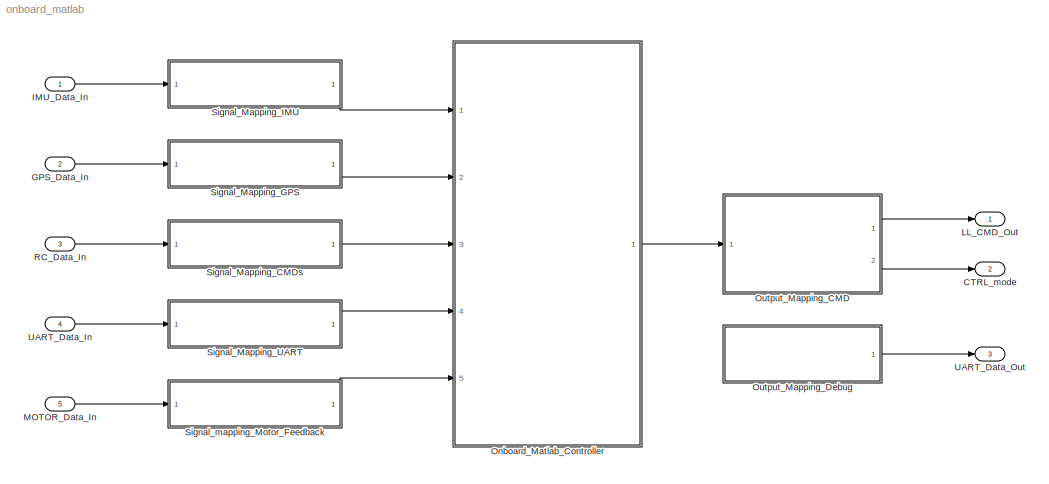
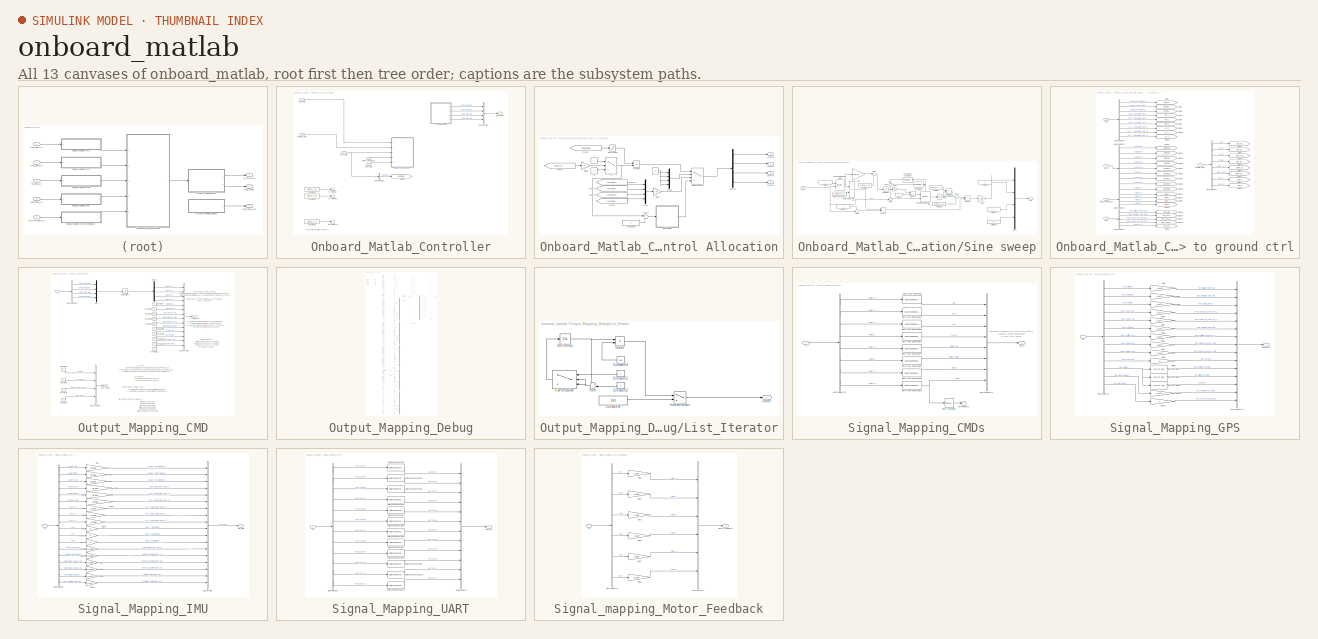
[diagram: thumbnail index - all 13 canvases of the model, root first then tree order]
MODEL onboard_matlab
KIND model
CONFIG InitFcn = InitOnboardMatlab;
CONFIG PreLoadFcn = InitOnboardMatlab_bus;
BLOCK [Outport] CTRL_mode
  BusOutputAsStruct = on
  IconDisplay = Port number
  OutDataTypeStr = Bus: CTRL_MODE
  Port = 2
  SID = 8219
  SampleTime = Sampletime.Onboard
BLOCK [Inport] GPS_Data_In
  BusOutputAsStruct = on
  IconDisplay = Port number
  OutDataTypeStr = Bus: GPS_DATA_IN
  OutMax = 2^31-1
  OutMin = -2^31
  Port = 2
  SID = 3
  SampleTime = Sampletime.Onboard
BLOCK [Inport] IMU_Data_In
  BusOutputAsStruct = on
  IconDisplay = Port number
  OutDataTypeStr = Bus: IMU_DATA_IN
  OutMax = 2^31-1
  OutMin = -2^31
  SID = 1
  SampleTime = Sampletime.Onboard
BLOCK [Outport] LL_CMD_Out
  BusOutputAsStruct = on
  IconDisplay = Port number
  OutDataTypeStr = Bus: LL_CMD_OUT
  SID = 1094
  SampleTime = Sampletime.Onboard
BLOCK [Inport] MOTOR_Data_In
  BusOutputAsStruct = on
  IconDisplay = Port number
  OutDataTypeStr = Bus: MOTOR_DATA_IN
  OutMax = 200
  OutMin = 0
  Port = 5
  SID = 8005
  SampleTime = Sampletime.Onboard
BLOCK [SubSystem] Onboard_Matlab_Controller
  FunctionWithSeparateData = off
  MaskHideContents = off
  MinAlgLoopOccurrences = off
  MinMaxOverflowLogging = MinMaxAndOverflow
  Opaque = off
  Ports = [5, 1]
  PropExecContextOutsideSubsystem = off
  RTWSystemCode = Auto
  RequestExecContextInheritance = off
  SID = 8045
BLOCK [BusCreator] Onboard_Matlab_Controller/Bus\nCreator
  DisplayOption = bar
  Ports = [4, 1]
  SID = 8105
BLOCK [BusSelector] Onboard_Matlab_Controller/Bus\nSelector
  OutputSignals = uart_ctrl_12
  Ports = [1, 1]
  SID = 8106
BLOCK [Constant] Onboard_Matlab_Controller/Constant1
  OutDataTypeStr = fixdt(1,32,16)
  OutMax = 2^15-1
  OutMin = -2^15
  SID = 8136
  Value = uart_up_p_01
BLOCK [Constant] Onboard_Matlab_Controller/Constant10
  OutDataTypeStr = fixdt(1,32,16)
  OutMax = 2^15-1
  OutMin = -2^15
  SID = 8137
  Value = uart_up_p_10
BLOCK [Constant] Onboard_Matlab_Controller/Constant2
  OutDataTypeStr = fixdt(1,32,16)
  OutMax = 2^15-1
  OutMin = -2^15
  SID = 8138
  Value = uart_up_p_02
BLOCK [SubSystem] Onboard_Matlab_Controller/Control Allocation
  FunctionWithSeparateData = off
  MaskHideContents = off
  MinAlgLoopOccurrences = off
  Opaque = off
  Ports = [0, 4]
  PropExecContextOutsideSubsystem = off
  RTWSystemCode = Auto
  RequestExecContextInheritance = off
  SID = 8140
BLOCK [Constant] Onboard_Matlab_Controller/Control Allocation/   
  OutDataTypeStr = fixdt(1,32,28)
  SID = 8635
  Value = 0
BLOCK [Constant] Onboard_Matlab_Controller/Control Allocation/   1
  OutDataTypeStr = fixdt(1,32,16)
  SID = 8636
BLOCK [Constant] Onboard_Matlab_Controller/Control Allocation/   2
  OutDataTypeStr = fixdt(1,32,16)
  SID = 8637
  Value = 0
BLOCK [Switch] Onboard_Matlab_Controller/Control Allocation/ 2
  InputSameDT = off
  OutDataTypeStr = fixdt(1,32,16)
  SID = 8638
  SaturateOnIntegerOverflow = off
BLOCK [Constant] Onboard_Matlab_Controller/Control Allocation/Amplitude1
  OutDataTypeStr = fixdt(1,32,16)
  OutMax = 2^15-1
  OutMin = -2^15
  SID = 8732
BLOCK [Demux] Onboard_Matlab_Controller/Control Allocation/Demux
  DisplayOption = bar
  Ports = [1, 4]
  SID = 8731
BLOCK [From] Onboard_Matlab_Controller/Control Allocation/From1
  GotoTag = Stick_thrust
  SID = 8639
  TagVisibility = global
BLOCK [From] Onboard_Matlab_Controller/Control Allocation/From10
  GotoTag = MotCom1
  SID = 8640
  TagVisibility = global
BLOCK [From] Onboard_Matlab_Controller/Control Allocation/From4
  GotoTag = MotCom2
  SID = 8641
  TagVisibility = global
BLOCK [From] Onboard_Matlab_Controller/Control Allocation/From5
  GotoTag = MotCom3
  SID = 8642
  TagVisibility = global
BLOCK [From] Onboard_Matlab_Controller/Control Allocation/From6
  GotoTag = MotCom4
  SID = 8643
  TagVisibility = global
BLOCK [From] Onboard_Matlab_Controller/Control Allocation/From7
  GotoTag = SteporSine
  SID = 8644
  TagVisibility = global
BLOCK [Gain] Onboard_Matlab_Controller/Control Allocation/Gain4
  Gain = 20
  OutDataTypeStr = fixdt(1,32,16)
  ParamDataTypeStr = Inherit: Inherit via internal rule
  SID = 8645
BLOCK [Gain] Onboard_Matlab_Controller/Control Allocation/Gain6
  OutDataTypeStr = fixdt(1,32,16)
  ParamDataTypeStr = Inherit: Inherit via internal rule
  SID = 8646
BLOCK [MultiPortSwitch] Onboard_Matlab_Controller/Control Allocation/Index\nVector
  DataPortOrder = Zero-based contiguous
  InputSameDT = off
  Ports = [4, 1]
  SID = 8647
  SaturateOnIntegerOverflow = off
  zeroidx = on
BLOCK [Outport] Onboard_Matlab_Controller/Control Allocation/Motor1
  IconDisplay = Port number
  SID = 8156
BLOCK [Outport] Onboard_Matlab_Controller/Control Allocation/Motor2
  IconDisplay = Port number
  Port = 2
  SID = 8425
BLOCK [Outport] Onboard_Matlab_Controller/Control Allocation/Motor3
  IconDisplay = Port number
  Port = 3
  SID = 8426
BLOCK [Outport] Onboard_Matlab_Controller/Control Allocation/Motor4
  IconDisplay = Port number
  Port = 4
  SID = 8427
BLOCK [Mux] Onboard_Matlab_Controller/Control Allocation/Mux1
  DisplayOption = bar
  Ports = [4, 1]
  SID = 8648
BLOCK [Mux] Onboard_Matlab_Controller/Control Allocation/Mux2
  DisplayOption = bar
  Ports = [4, 1]
  SID = 8651
BLOCK [Product] Onboard_Matlab_Controller/Control Allocation/Product
  InputSameDT = off
  OutDataTypeStr = Inherit: Inherit via internal rule
  Ports = [2, 1]
  RndMeth = Floor
  SID = 8653
  SaturateOnIntegerOverflow = off
BLOCK [Saturate] Onboard_Matlab_Controller/Control Allocation/Saturation4
  InputPortMap = u0
  LowerLimit = 0
  OutDataTypeStr = uint8
  Ports = [1, 1]
  RndMeth = Zero
  SID = 8654
  UpperLimit = 2
BLOCK [SubSystem] Onboard_Matlab_Controller/Control Allocation/Sine sweep
  FunctionWithSeparateData = off
  MaskHideContents = off
  MinAlgLoopOccurrences = off
  Opaque = off
  Ports = [1, 1]
  PropExecContextOutsideSubsystem = off
  RTWSystemCode = Auto
  RequestExecContextInheritance = off
  SID = 8733
BLOCK [Constant] Onboard_Matlab_Controller/Control Allocation/Sine sweep/Amplitude
  OutDataTypeStr = fixdt(1,32,16)
  OutMax = 2^15-1
  OutMin = -2^15
  SID = 8735
  Value = uart_up_p_10/2
BLOCK [Constant] Onboard_Matlab_Controller/Control Allocation/Sine sweep/Amplitude1
  OutDataTypeStr = fixdt(1,32,16)
  OutMax = 2^15-1
  OutMin = -2^15
  SID = 8736
  Value = uart_up_p_12
BLOCK [Constant] Onboard_Matlab_Controller/Control Allocation/Sine sweep/Amplitude2
  OutDataTypeStr = fixdt(1,32,16)
  OutMax = 2^15-1
  OutMin = -2^15
  SID = 8737
  Value = uart_up_p_11
BLOCK [Constant] Onboard_Matlab_Controller/Control Allocation/Sine sweep/Amplitude3
  OutDataTypeStr = fixdt(1,32,16)
  OutMax = 2^15-1
  OutMin = -2^15
  SID = 8738
BLOCK [Constant] Onboard_Matlab_Controller/Control Allocation/Sine sweep/Amplitude4
  OutDataTypeStr = fixdt(1,32,16)
  OutMax = 2^15-1
  OutMin = -2^15
  SID = 8739
BLOCK [Constant] Onboard_Matlab_Controller/Control Allocation/Sine sweep/Amplitude5
  OutDataTypeStr = fixdt(1,32,16)
  OutMax = 2^15-1
  OutMin = -2^15
  SID = 8740
  Value = 0
BLOCK [Constant] Onboard_Matlab_Controller/Control Allocation/Sine sweep/Amplitude6
  OutDataTypeStr = fixdt(1,32,16)
  OutMax = 2^15-1
  OutMin = -2^15
  SID = 8741
  Value = 0
BLOCK [Constant] Onboard_Matlab_Controller/Control Allocation/Sine sweep/Amplitude7
  OutDataTypeStr = fixdt(1,32,16)
  OutMax = 2^15-1
  OutMin = -2^15
  SID = 8767
  Value = 50
BLOCK [Reference] Onboard_Matlab_Controller/Control Allocation/Sine sweep/Compare\nTo Constant3  REF=simulink/Logic and Bit\nOperations/Compare\nTo Constant
  OutDataTypeStr = uint8
  Ports = [1, 1]
  SID = 8742
  SourceBlock = simulink/Logic and Bit\nOperations/Compare\nTo Constant
  SourceType = Compare To Constant
  ZeroCross = off
  const = 2*pi
  relop = >=
BLOCK [Reference] Onboard_Matlab_Controller/Control Allocation/Sine sweep/Compare\nTo Constant4  REF=simulink/Logic and Bit\nOperations/Compare\nTo Constant
  OutDataTypeStr = uint8
  Ports = [1, 1]
  SID = 8743
  SourceBlock = simulink/Logic and Bit\nOperations/Compare\nTo Constant
  SourceType = Compare To Constant
  ZeroCross = off
  const = -2*pi
  relop = <=
BLOCK [DiscreteIntegrator] Onboard_Matlab_Controller/Control Allocation/Sine sweep/Discrete-Time\nIntegrator1
  ExternalReset = level
  ICPrevOutput = DiscIntNeverNeededParam
  ICPrevScaledInput = DiscIntNeverNeededParam
  InitialConditionMode = State only (most efficient)
  LimitOutput = on
  LowerSaturationLimit = -2*pi
  OutDataTypeStr = fixdt(1,32,28)
  OutMax = 2*pi
  Ports = [2, 1, 0, 0, 1]
  RndMeth = Zero
  SID = 8744
  SampleTime = -1
  ShowStatePort = on
  UpperSaturationLimit = 2*pi
BLOCK [DiscreteIntegrator] Onboard_Matlab_Controller/Control Allocation/Sine sweep/Discrete-Time\nIntegrator2
  ExternalReset = level
  ICPrevOutput = DiscIntNeverNeededParam
  ICPrevScaledInput = DiscIntNeverNeededParam
  InitialConditionMode = State only (most efficient)
  LowerSaturationLimit = -2*pi
  OutDataTypeStr = fixdt(1,32,21)
  Ports = [2, 1]
  RndMeth = Zero
  SID = 8745
  SampleTime = -1
  UpperSaturationLimit = 2*pi
BLOCK [Gain] Onboard_Matlab_Controller/Control Allocation/Sine sweep/Gain
  Gain = (uart_up_p_13-uart_up_p_12)/uart_up_p_14
  OutDataTypeStr = Inherit: Inherit via internal rule
  ParamDataTypeStr = Inherit: Inherit via internal rule
  SID = 8746
  SaturateOnIntegerOverflow = off
BLOCK [Gain] Onboard_Matlab_Controller/Control Allocation/Sine sweep/Gain1
  Gain = 2*pi
  OutDataTypeStr = Inherit: Inherit via internal rule
  ParamDataTypeStr = Inherit: Inherit via internal rule
  SID = 8747
  SaturateOnIntegerOverflow = off
BLOCK [Gain] Onboard_Matlab_Controller/Control Allocation/Sine sweep/Gain9
  Gain = 100
  OutDataTypeStr = fixdt(1,32,16)
  ParamDataTypeStr = Inherit: Inherit via internal rule
  SID = 8749
  SaturateOnIntegerOverflow = off
BLOCK [Mux] Onboard_Matlab_Controller/Control Allocation/Sine sweep/Mux2
  DisplayOption = bar
  Ports = [4, 1]
  SID = 8750
BLOCK [Outport] Onboard_Matlab_Controller/Control Allocation/Sine sweep/Out1
  IconDisplay = Port number
  SID = 8765
BLOCK [Product] Onboard_Matlab_Controller/Control Allocation/Sine sweep/Product
  InputSameDT = off
  OutDataTypeStr = Inherit: Inherit via internal rule
  Ports = [2, 1]
  RndMeth = Floor
  SID = 8751
  SaturateOnIntegerOverflow = off
BLOCK [Product] Onboard_Matlab_Controller/Control Allocation/Sine sweep/Product1
  InputSameDT = off
  OutDataTypeStr = Inherit: Inherit via internal rule
  Ports = [2, 1]
  RndMeth = Floor
  SID = 8752
  SaturateOnIntegerOverflow = off
BLOCK [Product] Onboard_Matlab_Controller/Control Allocation/Sine sweep/Product2
  InputSameDT = off
  OutDataTypeStr = Inherit: Inherit via internal rule
  Ports = [2, 1]
  RndMeth = Floor
  SID = 8753
  SaturateOnIntegerOverflow = off
BLOCK [Product] Onboard_Matlab_Controller/Control Allocation/Sine sweep/Product3
  InputSameDT = off
  OutDataTypeStr = Inherit: Inherit via internal rule
  Ports = [2, 1]
  RndMeth = Floor
  SID = 8754
  SaturateOnIntegerOverflow = off
BLOCK [RelationalOperator] Onboard_Matlab_Controller/Control Allocation/Sine sweep/Relational\nOperator
  InputSameDT = off
  Operator = <=
  OutDataTypeStr = fixdt(1,16)
  Ports = [2, 1]
  SID = 8755
BLOCK [Inport] Onboard_Matlab_Controller/Control Allocation/Sine sweep/Reset
  IconDisplay = Port number
  SID = 8734
BLOCK [Saturate] Onboard_Matlab_Controller/Control Allocation/Sine sweep/Saturation4
  InputPortMap = u0
  LowerLimit = 0
  OutDataTypeStr = fixdt(1,16,10)
  Ports = [1, 1]
  RndMeth = Zero
  SID = 8756
  UpperLimit = 32
BLOCK [Sum] Onboard_Matlab_Controller/Control Allocation/Sine sweep/Sum1
  IconShape = round
  InputSameDT = off
  Inputs = |++
  OutDataTypeStr = Inherit: Inherit via internal rule
  Ports = [2, 1]
  SID = 8757
BLOCK [Sum] Onboard_Matlab_Controller/Control Allocation/Sine sweep/Sum2
  AccumDataTypeStr = int8
  IconShape = round
  InputSameDT = off
  Inputs = ++|
  OutDataTypeStr = int8
  Ports = [2, 1]
  SID = 8758
BLOCK [Sum] Onboard_Matlab_Controller/Control Allocation/Sine sweep/Sum3
  IconShape = round
  InputSameDT = off
  Inputs = |++
  OutDataTypeStr = Inherit: Inherit via internal rule
  Ports = [2, 1]
  SID = 8759
BLOCK [Sum] Onboard_Matlab_Controller/Control Allocation/Sine sweep/Sum4
  AccumDataTypeStr = int8
  IconShape = round
  InputSameDT = off
  Inputs = |++
  OutDataTypeStr = int8
  Ports = [2, 1]
  SID = 8760
BLOCK [Sum] Onboard_Matlab_Controller/Control Allocation/Sine sweep/Sum5
  IconShape = round
  InputSameDT = off
  Inputs = ++|
  OutDataTypeStr = Inherit: Inherit via internal rule
  Ports = [2, 1]
  SID = 8761
BLOCK [Constant] Onboard_Matlab_Controller/Control Allocation/Sine sweep/Sweep sinyal suresi
  OutDataTypeStr = fixdt(1,32,16)
  OutMax = 2^15-1
  OutMin = -2^15
  SID = 8762
  Value = uart_up_p_14
BLOCK [Constant] Onboard_Matlab_Controller/Control Allocation/Sine sweep/Time0
  OutDataTypeStr = fixdt(1,32,8)
  SID = 8763
BLOCK [Trigonometry] Onboard_Matlab_Controller/Control Allocation/Sine sweep/Trigonometric\nFunction1
  ApproximationMethod = CORDIC
  Ports = [1, 1]
  SID = 8764
BLOCK [Sum] Onboard_Matlab_Controller/Control Allocation/Sum3
  IconShape = round
  InputSameDT = off
  Inputs = |+-
  OutDataTypeStr = Inherit: Inherit via internal rule
  Ports = [2, 1]
  SID = 8766
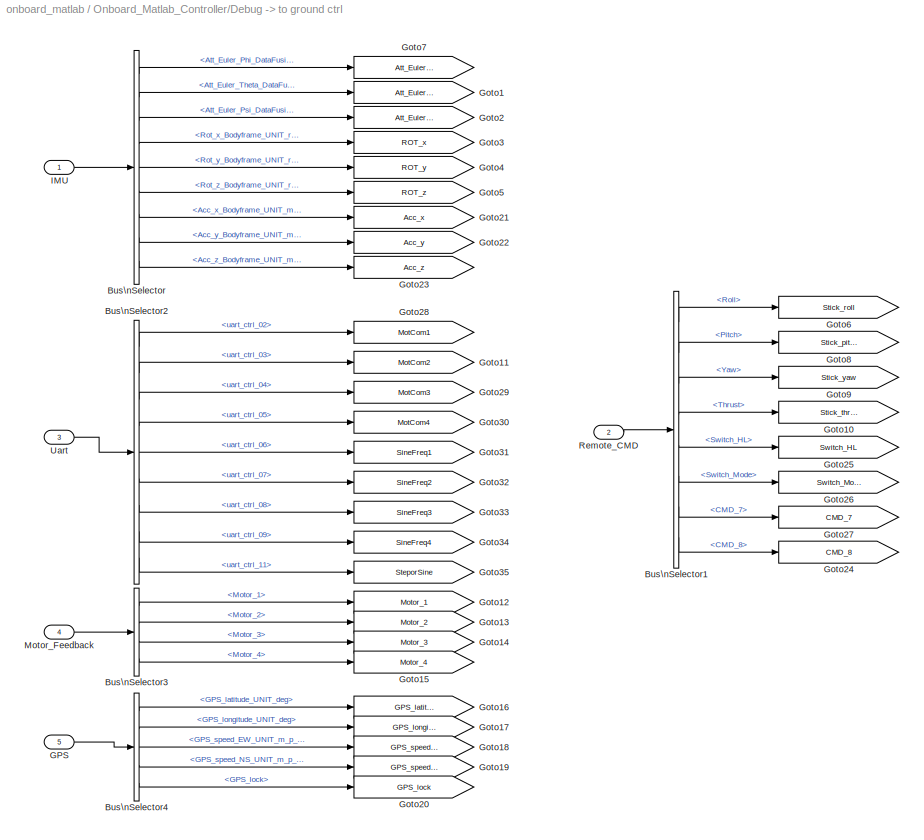
BLOCK [SubSystem] Onboard_Matlab_Controller/Debug -> to ground ctrl
  FunctionWithSeparateData = off
  MaskHideContents = off
  MinAlgLoopOccurrences = off
  Opaque = off
  Ports = [5]
  PropExecContextOutsideSubsystem = off
  RTWSystemCode = Auto
  RequestExecContextInheritance = off
  SID = 8157
BLOCK [BusSelector] Onboard_Matlab_Controller/Debug -> to ground ctrl/Bus\nSelector
  OutputSignals = Att_Euler_Phi_DataFusion_UNIT_rad,Att_Euler_Theta_DataFusion_UNIT_rad,Att_Euler_Psi_DataFusion_UNIT_rad,Rot_x_Bodyframe_UNIT_rad_p_s,Rot_y_Bodyframe_UNIT_rad_p_s,Rot_z_Bodyframe_UNIT_rad_p_s,Acc_x_Bodyframe_UNIT_m_p_s2,Acc_y_Bodyframe_UNIT_m_p_s2,Acc_z_Bodyframe_UNIT_m_p_s2
  Ports = [1, 9]
  SID = 8161
BLOCK [BusSelector] Onboard_Matlab_Controller/Debug -> to ground ctrl/Bus\nSelector1
  OutputSignals = Roll,Pitch,Yaw,Thrust,Switch_HL,Switch_Mode,CMD_7,CMD_8
  Ports = [1, 8]
  SID = 8162
BLOCK [BusSelector] Onboard_Matlab_Controller/Debug -> to ground ctrl/Bus\nSelector2
  OutputSignals = uart_ctrl_02,uart_ctrl_03,uart_ctrl_04,uart_ctrl_05,uart_ctrl_06,uart_ctrl_07,uart_ctrl_08,uart_ctrl_09,uart_ctrl_11
  Ports = [1, 9]
  SID = 8163
BLOCK [BusSelector] Onboard_Matlab_Controller/Debug -> to ground ctrl/Bus\nSelector3
  OutputSignals = Motor_1,Motor_2,Motor_3,Motor_4
  Ports = [1, 4]
  SID = 8184
BLOCK [BusSelector] Onboard_Matlab_Controller/Debug -> to ground ctrl/Bus\nSelector4
  OutputSignals = GPS_latitude_UNIT_deg,GPS_longitude_UNIT_deg,GPS_speed_EW_UNIT_m_p_s,GPS_speed_NS_UNIT_m_p_s,GPS_lock
  Ports = [1, 5]
  SID = 8231
BLOCK [Inport] Onboard_Matlab_Controller/Debug -> to ground ctrl/GPS
  IconDisplay = Port number
  Port = 5
  SID = 8232
BLOCK [Goto] Onboard_Matlab_Controller/Debug -> to ground ctrl/Goto1
  GotoTag = Att_Euler_Theta
  SID = 8164
  TagVisibility = global
BLOCK [Goto] Onboard_Matlab_Controller/Debug -> to ground ctrl/Goto10
  GotoTag = Stick_thrust
  SID = 8165
  TagVisibility = global
BLOCK [Goto] Onboard_Matlab_Controller/Debug -> to ground ctrl/Goto11
  GotoTag = MotCom2
  SID = 8347
  TagVisibility = global
BLOCK [Goto] Onboard_Matlab_Controller/Debug -> to ground ctrl/Goto12
  GotoTag = Motor_1
  SID = 8186
  TagVisibility = global
BLOCK [Goto] Onboard_Matlab_Controller/Debug -> to ground ctrl/Goto13
  GotoTag = Motor_2
  SID = 8187
  TagVisibility = global
BLOCK [Goto] Onboard_Matlab_Controller/Debug -> to ground ctrl/Goto14
  GotoTag = Motor_3
  SID = 8188
  TagVisibility = global
BLOCK [Goto] Onboard_Matlab_Controller/Debug -> to ground ctrl/Goto15
  GotoTag = Motor_4
  SID = 8189
  TagVisibility = global
BLOCK [Goto] Onboard_Matlab_Controller/Debug -> to ground ctrl/Goto16
  GotoTag = GPS_latitude
  SID = 8233
  TagVisibility = global
BLOCK [Goto] Onboard_Matlab_Controller/Debug -> to ground ctrl/Goto17
  GotoTag = GPS_longitude
  SID = 8234
  TagVisibility = global
BLOCK [Goto] Onboard_Matlab_Controller/Debug -> to ground ctrl/Goto18
  GotoTag = GPS_speed_EW
  SID = 8235
  TagVisibility = global
BLOCK [Goto] Onboard_Matlab_Controller/Debug -> to ground ctrl/Goto19
  GotoTag = GPS_speed_NS
  SID = 8236
  TagVisibility = global
BLOCK [Goto] Onboard_Matlab_Controller/Debug -> to ground ctrl/Goto2
  GotoTag = Att_Euler_Psi
  SID = 8167
  TagVisibility = global
BLOCK [Goto] Onboard_Matlab_Controller/Debug -> to ground ctrl/Goto20
  GotoTag = GPS_lock
  SID = 8237
  TagVisibility = global
BLOCK [Goto] Onboard_Matlab_Controller/Debug -> to ground ctrl/Goto21
  GotoTag = Acc_x
  SID = 8238
  TagVisibility = global
BLOCK [Goto] Onboard_Matlab_Controller/Debug -> to ground ctrl/Goto22
  GotoTag = Acc_y
  SID = 8239
  TagVisibility = global
BLOCK [Goto] Onboard_Matlab_Controller/Debug -> to ground ctrl/Goto23
  GotoTag = Acc_z
  SID = 8240
  TagVisibility = global
BLOCK [Goto] Onboard_Matlab_Controller/Debug -> to ground ctrl/Goto24
  GotoTag = CMD_8
  SID = 8259
  TagVisibility = global
BLOCK [Goto] Onboard_Matlab_Controller/Debug -> to ground ctrl/Goto25
  GotoTag = Switch_HL
  SID = 8260
  TagVisibility = global
BLOCK [Goto] Onboard_Matlab_Controller/Debug -> to ground ctrl/Goto26
  GotoTag = Switch_Mode
  SID = 8261
  TagVisibility = global
BLOCK [Goto] Onboard_Matlab_Controller/Debug -> to ground ctrl/Goto27
  GotoTag = CMD_7
  SID = 8262
  TagVisibility = global
BLOCK [Goto] Onboard_Matlab_Controller/Debug -> to ground ctrl/Goto28
  GotoTag = MotCom1
  SID = 8267
  TagVisibility = global
BLOCK [Goto] Onboard_Matlab_Controller/Debug -> to ground ctrl/Goto29
  GotoTag = MotCom3
  SID = 8348
  TagVisibility = global
BLOCK [Goto] Onboard_Matlab_Controller/Debug -> to ground ctrl/Goto3
  GotoTag = ROT_x
  SID = 8168
  TagVisibility = global
BLOCK [Goto] Onboard_Matlab_Controller/Debug -> to ground ctrl/Goto30
  GotoTag = MotCom4
  SID = 8349
  TagVisibility = global
BLOCK [Goto] Onboard_Matlab_Controller/Debug -> to ground ctrl/Goto31
  GotoTag = SineFreq1
  SID = 8381
  TagVisibility = global
BLOCK [Goto] Onboard_Matlab_Controller/Debug -> to ground ctrl/Goto32
  GotoTag = SineFreq2
  SID = 8493
  TagVisibility = global
BLOCK [Goto] Onboard_Matlab_Controller/Debug -> to ground ctrl/Goto33
  GotoTag = SineFreq3
  SID = 8494
  TagVisibility = global
BLOCK [Goto] Onboard_Matlab_Controller/Debug -> to ground ctrl/Goto34
  GotoTag = SineFreq4
  SID = 8495
  TagVisibility = global
BLOCK [Goto] Onboard_Matlab_Controller/Debug -> to ground ctrl/Goto35
  GotoTag = SteporSine
  SID = 8498
  TagVisibility = global
BLOCK [Goto] Onboard_Matlab_Controller/Debug -> to ground ctrl/Goto4
  GotoTag = ROT_y
  SID = 8169
  TagVisibility = global
BLOCK [Goto] Onboard_Matlab_Controller/Debug -> to ground ctrl/Goto5
  GotoTag = ROT_z
  SID = 8170
  TagVisibility = global
BLOCK [Goto] Onboard_Matlab_Controller/Debug -> to ground ctrl/Goto6
  GotoTag = Stick_roll
  SID = 8171
  TagVisibility = global
BLOCK [Goto] Onboard_Matlab_Controller/Debug -> to ground ctrl/Goto7
  GotoTag = Att_Euler_Phi
  SID = 8172
  TagVisibility = global
BLOCK [Goto] Onboard_Matlab_Controller/Debug -> to ground ctrl/Goto8
  GotoTag = Stick_pitch
  SID = 8173
  TagVisibility = global
BLOCK [Goto] Onboard_Matlab_Controller/Debug -> to ground ctrl/Goto9
  GotoTag = Stick_yaw
  SID = 8174
  TagVisibility = global
BLOCK [Inport] Onboard_Matlab_Controller/Debug -> to ground ctrl/IMU
  IconDisplay = Port number
  SID = 8158
BLOCK [Inport] Onboard_Matlab_Controller/Debug -> to ground ctrl/Motor_Feedback
  IconDisplay = Port number
  Port = 4
  SID = 8185
BLOCK [Inport] Onboard_Matlab_Controller/Debug -> to ground ctrl/Remote_CMD
  IconDisplay = Port number
  Port = 2
  SID = 8159
BLOCK [Inport] Onboard_Matlab_Controller/Debug -> to ground ctrl/Uart
  IconDisplay = Port number
  Port = 3
  SID = 8160
BLOCK [Inport] Onboard_Matlab_Controller/GPS_Data
  IconDisplay = Port number
  Port = 2
  SID = 8047
BLOCK [Goto] Onboard_Matlab_Controller/Goto6
  GotoTag = OutputSwitch
  SID = 8176
  TagVisibility = global
BLOCK [Inport] Onboard_Matlab_Controller/IMU_Data
  IconDisplay = Port number
  SID = 8046
BLOCK [Inport] Onboard_Matlab_Controller/Motor_Feedback
  IconDisplay = Port number
  Port = 5
  SID = 8183
BLOCK [Outport] Onboard_Matlab_Controller/RPM_CMD
  IconDisplay = Port number
  SID = 8182
BLOCK [Inport] Onboard_Matlab_Controller/Remote_CMD
  IconDisplay = Port number
  Port = 3
  SID = 8048
BLOCK [Terminator] Onboard_Matlab_Controller/Terminator13
  SID = 8178
BLOCK [Terminator] Onboard_Matlab_Controller/Terminator5
  SID = 8180
BLOCK [Terminator] Onboard_Matlab_Controller/Terminator7
  SID = 8181
BLOCK [Inport] Onboard_Matlab_Controller/UART_CMD
  IconDisplay = Port number
  Port = 4
  SID = 8049
BLOCK [SubSystem] Output_Mapping_CMD
  FunctionWithSeparateData = off
  MaskHideContents = off
  MinAlgLoopOccurrences = off
  Opaque = off
  Ports = [1, 2]
  PropExecContextOutsideSubsystem = off
  RTWSystemCode = Auto
  RequestExecContextInheritance = off
  SID = 845
BLOCK [BusCreator] Output_Mapping_CMD/Bus\nCreator
  DisplayOption = bar
  Inputs = 14
  Ports = [14, 1]
  SID = 5807
BLOCK [BusCreator] Output_Mapping_CMD/Bus\nCreator1
  DisplayOption = bar
  Ports = [4, 1]
  SID = 8215
BLOCK [BusSelector] Output_Mapping_CMD/Bus\nSelector1
  OutputSignals = RPM_CMD_front,RPM_CMD_rear,RPM_CMD_left,RPM_CMD_right
  Ports = [1, 4]
  SID = 5779
BLOCK [Outport] Output_Mapping_CMD/CTRL_mode
  IconDisplay = Port number
  Port = 2
  SID = 8214
BLOCK [Constant] Output_Mapping_CMD/Constant
  OutDataTypeStr = int16
  SID = 7790
  Value = 0
BLOCK [Constant] Output_Mapping_CMD/Constant1
  OutDataTypeStr = int16
  SID = 7794
  Value = 0
BLOCK [Constant] Output_Mapping_CMD/Constant10
  OutDataTypeStr = int16
  SID = 8225
  Value = 0
BLOCK [Constant] Output_Mapping_CMD/Constant11
  OutDataTypeStr = int16
  SID = 8226
  Value = 0
BLOCK [Constant] Output_Mapping_CMD/Constant12
  OutDataTypeStr = int16
  SID = 8228
  Value = 0
BLOCK [Constant] Output_Mapping_CMD/Constant13
  OutDataTypeStr = int16
  SID = 8230
  Value = 31
BLOCK [Constant] Output_Mapping_CMD/Constant2
  OutDataTypeStr = uint8
  SID = 8216
  Value = 0
BLOCK [Constant] Output_Mapping_CMD/Constant3
  OutDataTypeStr = uint8
  SID = 8217
BLOCK [Constant] Output_Mapping_CMD/Constant4
  OutDataTypeStr = uint8
  SID = 8218
  Value = 0
BLOCK [Constant] Output_Mapping_CMD/Constant5
  OutDataTypeStr = int16
  SID = 8220
  Value = 100
BLOCK [Constant] Output_Mapping_CMD/Constant6
  OutDataTypeStr = int16
  SID = 8221
  Value = 100
BLOCK [Constant] Output_Mapping_CMD/Constant7
  OutDataTypeStr = int16
  SID = 8222
  Value = 100
BLOCK [Constant] Output_Mapping_CMD/Constant8
  OutDataTypeStr = int16
  SID = 8223
  Value = 0
BLOCK [Constant] Output_Mapping_CMD/Constant9
  OutDataTypeStr = int16
  SID = 8224
  Value = 0
BLOCK [Demux] Output_Mapping_CMD/Demux
  DisplayOption = bar
  Ports = [1, 4]
  SID = 5812
BLOCK [Outport] Output_Mapping_CMD/LL_CMD_out
  IconDisplay = Port number
  SID = 866
BLOCK [Mux] Output_Mapping_CMD/Mux
  DisplayOption = bar
  Ports = [4, 1]
  SID = 5782
BLOCK [Saturate] Output_Mapping_CMD/Saturation4
  InputPortMap = u0
  LowerLimit = 1
  OutDataTypeStr = int16
  Ports = [1, 1]
  RndMeth = Zero
  SID = 5927
  UpperLimit = 200
BLOCK [Inport] Output_Mapping_CMD/u
  IconDisplay = Port number
  SID = 846
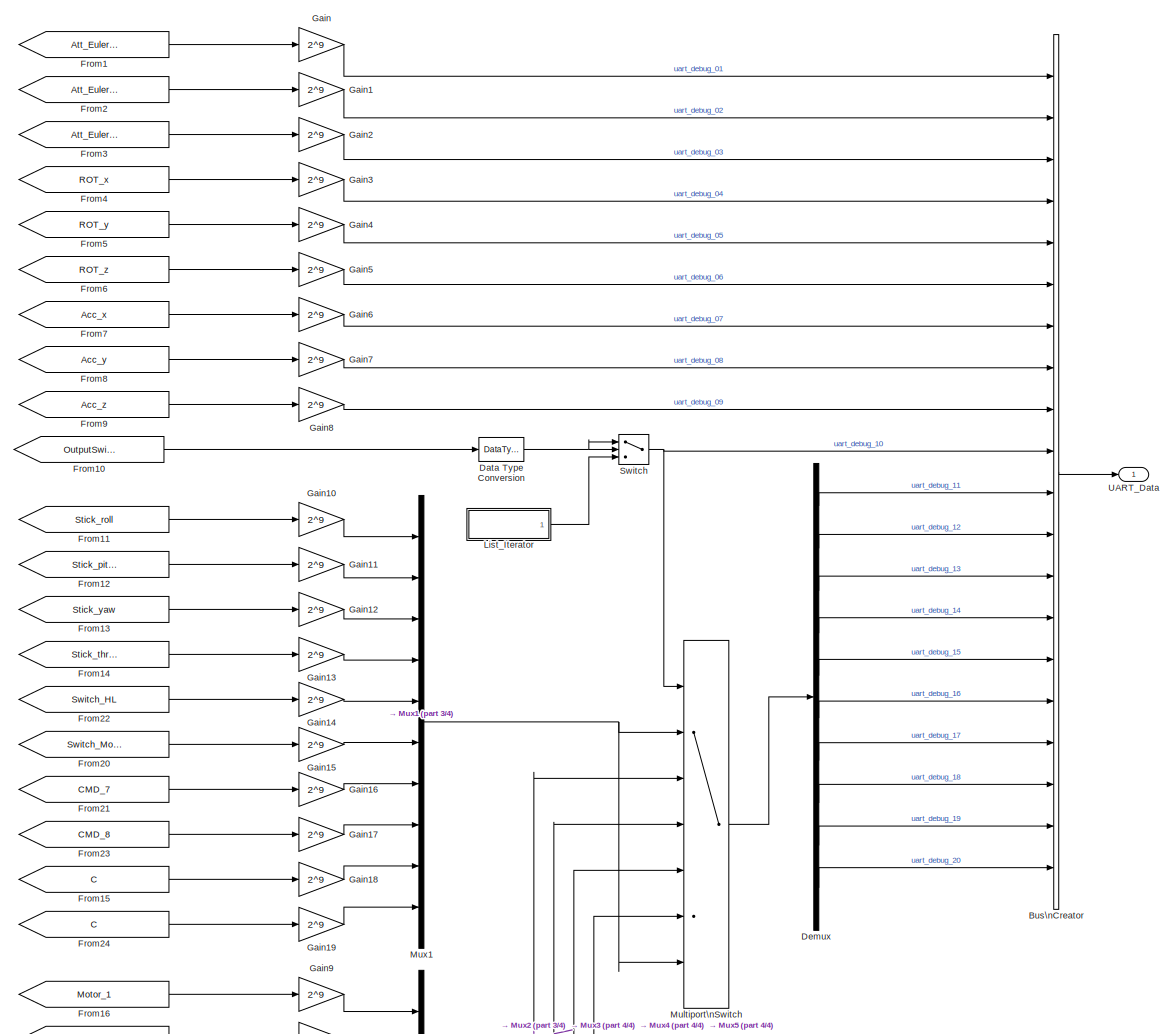
[diagram: Output_Mapping_Debug - part 1/4, full width, top band]
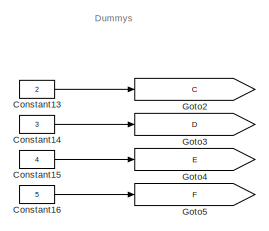
[diagram: Output_Mapping_Debug - part 2/4, top left region]
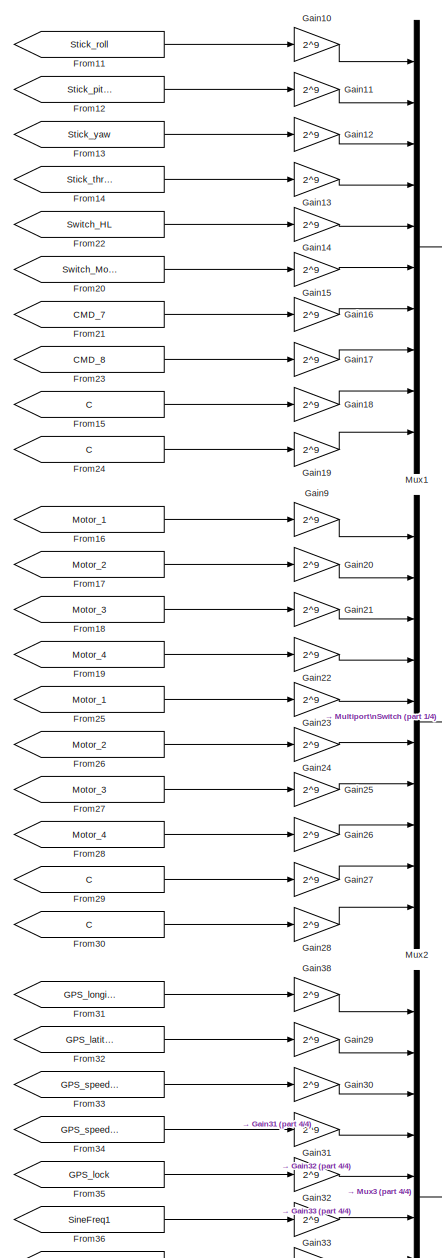
[diagram: Output_Mapping_Debug - part 3/4, central region]
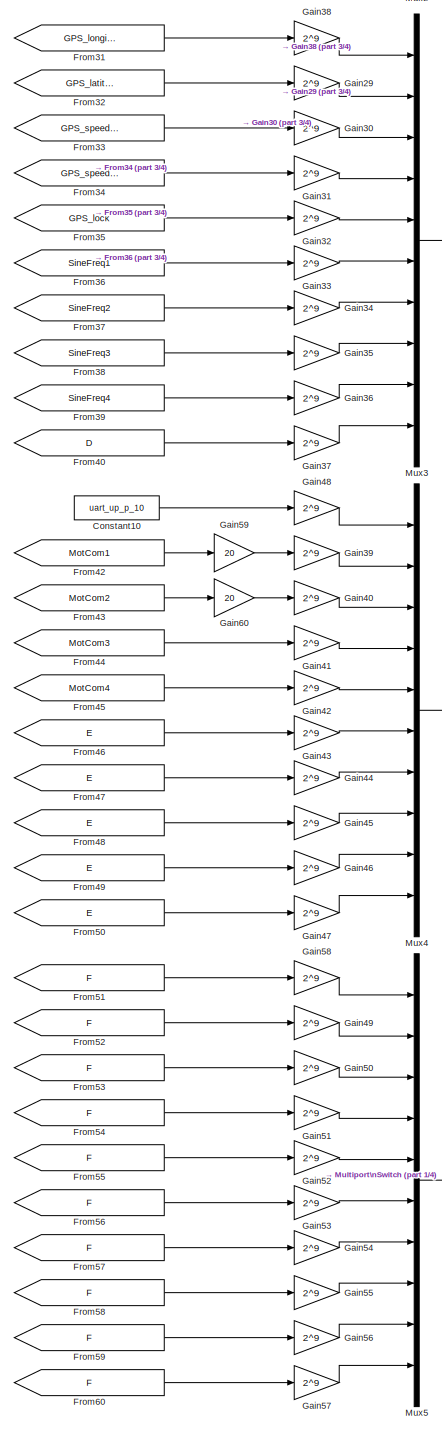
[diagram: Output_Mapping_Debug - part 4/4, bottom center region]
BLOCK [SubSystem] Output_Mapping_Debug
  FunctionWithSeparateData = off
  MaskHideContents = off
  MinAlgLoopOccurrences = off
  Opaque = off
  Ports = [0, 1]
  PropExecContextOutsideSubsystem = off
  RTWSystemCode = Auto
  RequestExecContextInheritance = off
  SID = 7799
BLOCK [BusCreator] Output_Mapping_Debug/Bus\nCreator
  DisplayOption = bar
  Inputs = 20
  Ports = [20, 1]
  SID = 7800
BLOCK [Constant] Output_Mapping_Debug/Constant10
  OutDataTypeStr = fixdt(1,32,16)
  OutMax = 2^15-1
  OutMin = -2^15
  SID = 8354
  Value = uart_up_p_10
BLOCK [Constant] Output_Mapping_Debug/Constant13
  OutDataTypeStr = fixdt(1,16,9)
  OutMax = 63
  OutMin = -64
  SID = 7803
  Value = 2
BLOCK [Constant] Output_Mapping_Debug/Constant14
  OutDataTypeStr = fixdt(1,16,9)
  OutMax = 63
  OutMin = -64
  SID = 7804
  Value = 3
BLOCK [Constant] Output_Mapping_Debug/Constant15
  OutDataTypeStr = fixdt(1,16,9)
  OutMax = 63
  OutMin = -64
  SID = 7805
  Value = 4
BLOCK [Constant] Output_Mapping_Debug/Constant16
  OutDataTypeStr = fixdt(1,16,9)
  OutMax = 63
  OutMin = -64
  SID = 7806
  Value = 5
BLOCK [DataTypeConversion] Output_Mapping_Debug/Data Type Conversion
  OutDataTypeStr = int16
  RndMeth = Floor
  SID = 7807
  SaturateOnIntegerOverflow = off
BLOCK [Demux] Output_Mapping_Debug/Demux
  DisplayOption = bar
  Outputs = 10
  Ports = [1, 10]
  SID = 7808
BLOCK [From] Output_Mapping_Debug/From1
  GotoTag = Att_Euler_Phi
  SID = 8190
  TagVisibility = global
BLOCK [From] Output_Mapping_Debug/From10
  GotoTag = OutputSwitch
  SID = 8191
  TagVisibility = global
BLOCK [From] Output_Mapping_Debug/From11
  GotoTag = Stick_roll
  SID = 8192
  TagVisibility = global
BLOCK [From] Output_Mapping_Debug/From12
  GotoTag = Stick_pitch
  SID = 8193
  TagVisibility = global
BLOCK [From] Output_Mapping_Debug/From13
  GotoTag = Stick_yaw
  SID = 8194
  TagVisibility = global
BLOCK [From] Output_Mapping_Debug/From14
  GotoTag = Stick_thrust
  SID = 8195
  TagVisibility = global
BLOCK [From] Output_Mapping_Debug/From15
  GotoTag = C
  SID = 8345
  TagVisibility = global
BLOCK [From] Output_Mapping_Debug/From16
  GotoTag = Motor_1
  SID = 8613
  TagVisibility = global
BLOCK [From] Output_Mapping_Debug/From17
  GotoTag = Motor_2
  SID = 8614
  TagVisibility = global
BLOCK [From] Output_Mapping_Debug/From18
  GotoTag = Motor_3
  SID = 8615
  TagVisibility = global
BLOCK [From] Output_Mapping_Debug/From19
  GotoTag = Motor_4
  SID = 8616
  TagVisibility = global
BLOCK [From] Output_Mapping_Debug/From2
  GotoTag = Att_Euler_Theta
  SID = 8201
  TagVisibility = global
BLOCK [From] Output_Mapping_Debug/From20
  GotoTag = Switch_Mode
  SID = 8263
  TagVisibility = global
BLOCK [From] Output_Mapping_Debug/From21
  GotoTag = CMD_7
  SID = 8264
  TagVisibility = global
BLOCK [From] Output_Mapping_Debug/From22
  GotoTag = Switch_HL
  SID = 8210
  TagVisibility = global
BLOCK [From] Output_Mapping_Debug/From23
  GotoTag = CMD_8
  SID = 8265
  TagVisibility = global
BLOCK [From] Output_Mapping_Debug/From24
  GotoTag = C
  SID = 8346
  TagVisibility = global
BLOCK [From] Output_Mapping_Debug/From25
  GotoTag = Motor_1
  SID = 7826
  TagVisibility = global
BLOCK [From] Output_Mapping_Debug/From26
  GotoTag = Motor_2
  SID = 7827
  TagVisibility = global
BLOCK [From] Output_Mapping_Debug/From27
  GotoTag = Motor_3
  SID = 7828
  TagVisibility = global
BLOCK [From] Output_Mapping_Debug/From28
  GotoTag = Motor_4
  SID = 7829
  TagVisibility = global
BLOCK [From] Output_Mapping_Debug/From29
  GotoTag = C
  SID = 7830
  TagVisibility = global
BLOCK [From] Output_Mapping_Debug/From3
  GotoTag = Att_Euler_Psi
  SID = 8202
  TagVisibility = global
BLOCK [From] Output_Mapping_Debug/From30
  GotoTag = C
  SID = 7832
  TagVisibility = global
BLOCK [From] Output_Mapping_Debug/From31
  GotoTag = GPS_longitude
  SID = 7833
  TagVisibility = global
BLOCK [From] Output_Mapping_Debug/From32
  GotoTag = GPS_latitude
  SID = 7834
  TagVisibility = global
BLOCK [From] Output_Mapping_Debug/From33
  GotoTag = GPS_speed_EW
  SID = 7835
  TagVisibility = global
BLOCK [From] Output_Mapping_Debug/From34
  GotoTag = GPS_speed_NS
  SID = 7836
  TagVisibility = global
BLOCK [From] Output_Mapping_Debug/From35
  GotoTag = GPS_lock
  SID = 7837
  TagVisibility = global
BLOCK [From] Output_Mapping_Debug/From36
  GotoTag = SineFreq1
  SID = 7838
  TagVisibility = global
BLOCK [From] Output_Mapping_Debug/From37
  GotoTag = SineFreq2
  SID = 7839
  TagVisibility = global
BLOCK [From] Output_Mapping_Debug/From38
  GotoTag = SineFreq3
  SID = 7840
  TagVisibility = global
BLOCK [From] Output_Mapping_Debug/From39
  GotoTag = SineFreq4
  SID = 7841
  TagVisibility = global
BLOCK [From] Output_Mapping_Debug/From4
  GotoTag = ROT_x
  SID = 8203
  TagVisibility = global
BLOCK [From] Output_Mapping_Debug/From40
  GotoTag = D
  SID = 7843
  TagVisibility = global
BLOCK [From] Output_Mapping_Debug/From42
  GotoTag = MotCom1
  SID = 7845
  TagVisibility = global
BLOCK [From] Output_Mapping_Debug/From43
  GotoTag = MotCom2
  SID = 7846
  TagVisibility = global
BLOCK [From] Output_Mapping_Debug/From44
  GotoTag = MotCom3
  SID = 7847
  TagVisibility = global
BLOCK [From] Output_Mapping_Debug/From45
  GotoTag = MotCom4
  SID = 7848
  TagVisibility = global
BLOCK [From] Output_Mapping_Debug/From46
  GotoTag = E
  SID = 7849
  TagVisibility = global
BLOCK [From] Output_Mapping_Debug/From47
  GotoTag = E
  SID = 7850
  TagVisibility = global
BLOCK [From] Output_Mapping_Debug/From48
  GotoTag = E
  SID = 7851
  TagVisibility = global
BLOCK [From] Output_Mapping_Debug/From49
  GotoTag = E
  SID = 7852
  TagVisibility = global
BLOCK [From] Output_Mapping_Debug/From5
  GotoTag = ROT_y
  SID = 8204
  TagVisibility = global
BLOCK [From] Output_Mapping_Debug/From50
  GotoTag = E
  SID = 7854
  TagVisibility = global
BLOCK [From] Output_Mapping_Debug/From51
  GotoTag = F
  SID = 7855
  TagVisibility = global
BLOCK [From] Output_Mapping_Debug/From52
  GotoTag = F
  SID = 7856
  TagVisibility = global
BLOCK [From] Output_Mapping_Debug/From53
  GotoTag = F
  SID = 7857
  TagVisibility = global
BLOCK [From] Output_Mapping_Debug/From54
  GotoTag = F
  SID = 7858
  TagVisibility = global
BLOCK [From] Output_Mapping_Debug/From55
  GotoTag = F
  SID = 7859
  TagVisibility = global
BLOCK [From] Output_Mapping_Debug/From56
  GotoTag = F
  SID = 7860
  TagVisibility = global
BLOCK [From] Output_Mapping_Debug/From57
  GotoTag = F
  SID = 7861
  TagVisibility = global
BLOCK [From] Output_Mapping_Debug/From58
  GotoTag = F
  SID = 7862
  TagVisibility = global
BLOCK [From] Output_Mapping_Debug/From59
  GotoTag = F
  SID = 7863
  TagVisibility = global
BLOCK [From] Output_Mapping_Debug/From6
  GotoTag = ROT_z
  SID = 8205
  TagVisibility = global
BLOCK [From] Output_Mapping_Debug/From60
  GotoTag = F
  SID = 7865
  TagVisibility = global
BLOCK [From] Output_Mapping_Debug/From7
  GotoTag = Acc_x
  SID = 8206
  TagVisibility = global
BLOCK [From] Output_Mapping_Debug/From8
  GotoTag = Acc_y
  SID = 8207
  TagVisibility = global
BLOCK [From] Output_Mapping_Debug/From9
  GotoTag = Acc_z
  SID = 8208
  TagVisibility = global
BLOCK [Gain] Output_Mapping_Debug/Gain
  Gain = 2^9
  OutDataTypeStr = int16
  ParamDataTypeStr = Inherit: Inherit via internal rule
  SID = 7869
BLOCK [Gain] Output_Mapping_Debug/Gain1
  Gain = 2^9
  OutDataTypeStr = int16
  ParamDataTypeStr = Inherit: Inherit via internal rule
  SID = 7870
BLOCK [Gain] Output_Mapping_Debug/Gain10
  Gain = 2^9
  OutDataTypeStr = int16
  ParamDataTypeStr = Inherit: Inherit via internal rule
  SID = 7871
BLOCK [Gain] Output_Mapping_Debug/Gain11
  Gain = 2^9
  OutDataTypeStr = int16
  ParamDataTypeStr = Inherit: Inherit via internal rule
  SID = 7872
BLOCK [Gain] Output_Mapping_Debug/Gain12
  Gain = 2^9
  OutDataTypeStr = int16
  ParamDataTypeStr = Inherit: Inherit via internal rule
  SID = 7873
BLOCK [Gain] Output_Mapping_Debug/Gain13
  Gain = 2^9
  OutDataTypeStr = int16
  ParamDataTypeStr = Inherit: Inherit via internal rule
  SID = 7874
BLOCK [Gain] Output_Mapping_Debug/Gain14
  Gain = 2^9
  OutDataTypeStr = int16
  ParamDataTypeStr = Inherit: Inherit via internal rule
  SID = 7875
BLOCK [Gain] Output_Mapping_Debug/Gain15
  Gain = 2^9
  OutDataTypeStr = int16
  ParamDataTypeStr = Inherit: Inherit via internal rule
  SID = 7876
BLOCK [Gain] Output_Mapping_Debug/Gain16
  Gain = 2^9
  OutDataTypeStr = int16
  ParamDataTypeStr = Inherit: Inherit via internal rule
  SID = 7877
BLOCK [Gain] Output_Mapping_Debug/Gain17
  Gain = 2^9
  OutDataTypeStr = int16
  ParamDataTypeStr = Inherit: Inherit via internal rule
  SID = 7878
BLOCK [Gain] Output_Mapping_Debug/Gain18
  Gain = 2^9
  OutDataTypeStr = int16
  ParamDataTypeStr = Inherit: Inherit via internal rule
  SID = 7879
BLOCK [Gain] Output_Mapping_Debug/Gain19
  Gain = 2^9
  OutDataTypeStr = int16
  ParamDataTypeStr = Inherit: Inherit via internal rule
  SID = 7880
BLOCK [Gain] Output_Mapping_Debug/Gain2
  Gain = 2^9
  OutDataTypeStr = int16
  ParamDataTypeStr = Inherit: Inherit via internal rule
  SID = 7881
BLOCK [Gain] Output_Mapping_Debug/Gain20
  Gain = 2^9
  OutDataTypeStr = int16
  ParamDataTypeStr = Inherit: Inherit via internal rule
  SID = 7882
BLOCK [Gain] Output_Mapping_Debug/Gain21
  Gain = 2^9
  OutDataTypeStr = int16
  ParamDataTypeStr = Inherit: Inherit via internal rule
  SID = 7883
BLOCK [Gain] Output_Mapping_Debug/Gain22
  Gain = 2^9
  OutDataTypeStr = int16
  ParamDataTypeStr = Inherit: Inherit via internal rule
  SID = 7884
BLOCK [Gain] Output_Mapping_Debug/Gain23
  Gain = 2^9
  OutDataTypeStr = int16
  ParamDataTypeStr = Inherit: Inherit via internal rule
  SID = 7885
BLOCK [Gain] Output_Mapping_Debug/Gain24
  Gain = 2^9
  OutDataTypeStr = int16
  ParamDataTypeStr = Inherit: Inherit via internal rule
  SID = 7886
BLOCK [Gain] Output_Mapping_Debug/Gain25
  Gain = 2^9
  OutDataTypeStr = int16
  ParamDataTypeStr = Inherit: Inherit via internal rule
  SID = 7887
BLOCK [Gain] Output_Mapping_Debug/Gain26
  Gain = 2^9
  OutDataTypeStr = int16
  ParamDataTypeStr = Inherit: Inherit via internal rule
  SID = 7888
BLOCK [Gain] Output_Mapping_Debug/Gain27
  Gain = 2^9
  OutDataTypeStr = int16
  ParamDataTypeStr = Inherit: Inherit via internal rule
  SID = 7889
BLOCK [Gain] Output_Mapping_Debug/Gain28
  Gain = 2^9
  OutDataTypeStr = int16
  ParamDataTypeStr = Inherit: Inherit via internal rule
  SID = 7890
BLOCK [Gain] Output_Mapping_Debug/Gain29
  Gain = 2^9
  OutDataTypeStr = int16
  ParamDataTypeStr = Inherit: Inherit via internal rule
  SID = 7891
BLOCK [Gain] Output_Mapping_Debug/Gain3
  Gain = 2^9
  OutDataTypeStr = int16
  ParamDataTypeStr = Inherit: Inherit via internal rule
  SID = 7892
BLOCK [Gain] Output_Mapping_Debug/Gain30
  Gain = 2^9
  OutDataTypeStr = int16
  ParamDataTypeStr = Inherit: Inherit via internal rule
  SID = 7893
BLOCK [Gain] Output_Mapping_Debug/Gain31
  Gain = 2^9
  OutDataTypeStr = int16
  ParamDataTypeStr = Inherit: Inherit via internal rule
  SID = 7894
BLOCK [Gain] Output_Mapping_Debug/Gain32
  Gain = 2^9
  OutDataTypeStr = int16
  ParamDataTypeStr = Inherit: Inherit via internal rule
  SID = 7895
BLOCK [Gain] Output_Mapping_Debug/Gain33
  Gain = 2^9
  OutDataTypeStr = int16
  ParamDataTypeStr = Inherit: Inherit via internal rule
  SID = 7896
BLOCK [Gain] Output_Mapping_Debug/Gain34
  Gain = 2^9
  OutDataTypeStr = int16
  ParamDataTypeStr = Inherit: Inherit via internal rule
  SID = 7897
BLOCK [Gain] Output_Mapping_Debug/Gain35
  Gain = 2^9
  OutDataTypeStr = int16
  ParamDataTypeStr = Inherit: Inherit via internal rule
  SID = 7898
BLOCK [Gain] Output_Mapping_Debug/Gain36
  Gain = 2^9
  OutDataTypeStr = int16
  ParamDataTypeStr = Inherit: Inherit via internal rule
  SID = 7899
BLOCK [Gain] Output_Mapping_Debug/Gain37
  Gain = 2^9
  OutDataTypeStr = int16
  ParamDataTypeStr = Inherit: Inherit via internal rule
  SID = 7900
BLOCK [Gain] Output_Mapping_Debug/Gain38
  Gain = 2^9
  OutDataTypeStr = int16
  ParamDataTypeStr = Inherit: Inherit via internal rule
  SID = 7901
BLOCK [Gain] Output_Mapping_Debug/Gain39
  Gain = 2^9
  OutDataTypeStr = int16
  ParamDataTypeStr = Inherit: Inherit via internal rule
  SID = 7902
BLOCK [Gain] Output_Mapping_Debug/Gain4
  Gain = 2^9
  OutDataTypeStr = int16
  ParamDataTypeStr = Inherit: Inherit via internal rule
  SID = 7903
BLOCK [Gain] Output_Mapping_Debug/Gain40
  Gain = 2^9
  OutDataTypeStr = int16
  ParamDataTypeStr = Inherit: Inherit via internal rule
  SID = 7904
BLOCK [Gain] Output_Mapping_Debug/Gain41
  Gain = 2^9
  OutDataTypeStr = int16
  ParamDataTypeStr = Inherit: Inherit via internal rule
  SID = 7905
BLOCK [Gain] Output_Mapping_Debug/Gain42
  Gain = 2^9
  OutDataTypeStr = int16
  ParamDataTypeStr = Inherit: Inherit via internal rule
  SID = 7906
BLOCK [Gain] Output_Mapping_Debug/Gain43
  Gain = 2^9
  OutDataTypeStr = int16
  ParamDataTypeStr = Inherit: Inherit via internal rule
  SID = 7907
BLOCK [Gain] Output_Mapping_Debug/Gain44
  Gain = 2^9
  OutDataTypeStr = int16
  ParamDataTypeStr = Inherit: Inherit via internal rule
  SID = 7908
BLOCK [Gain] Output_Mapping_Debug/Gain45
  Gain = 2^9
  OutDataTypeStr = int16
  ParamDataTypeStr = Inherit: Inherit via internal rule
  SID = 7909
BLOCK [Gain] Output_Mapping_Debug/Gain46
  Gain = 2^9
  OutDataTypeStr = int16
  ParamDataTypeStr = Inherit: Inherit via internal rule
  SID = 7910
BLOCK [Gain] Output_Mapping_Debug/Gain47
  Gain = 2^9
  OutDataTypeStr = int16
  ParamDataTypeStr = Inherit: Inherit via internal rule
  SID = 7911
BLOCK [Gain] Output_Mapping_Debug/Gain48
  Gain = 2^9
  OutDataTypeStr = int16
  ParamDataTypeStr = Inherit: Inherit via internal rule
  SID = 7912
BLOCK [Gain] Output_Mapping_Debug/Gain49
  Gain = 2^9
  OutDataTypeStr = int16
  ParamDataTypeStr = Inherit: Inherit via internal rule
  SID = 7913
BLOCK [Gain] Output_Mapping_Debug/Gain5
  Gain = 2^9
  OutDataTypeStr = int16
  ParamDataTypeStr = Inherit: Inherit via internal rule
  SID = 7914
BLOCK [Gain] Output_Mapping_Debug/Gain50
  Gain = 2^9
  OutDataTypeStr = int16
  ParamDataTypeStr = Inherit: Inherit via internal rule
  SID = 7915
BLOCK [Gain] Output_Mapping_Debug/Gain51
  Gain = 2^9
  OutDataTypeStr = int16
  ParamDataTypeStr = Inherit: Inherit via internal rule
  SID = 7916
BLOCK [Gain] Output_Mapping_Debug/Gain52
  Gain = 2^9
  OutDataTypeStr = int16
  ParamDataTypeStr = Inherit: Inherit via internal rule
  SID = 7917
BLOCK [Gain] Output_Mapping_Debug/Gain53
  Gain = 2^9
  OutDataTypeStr = int16
  ParamDataTypeStr = Inherit: Inherit via internal rule
  SID = 7918
BLOCK [Gain] Output_Mapping_Debug/Gain54
  Gain = 2^9
  OutDataTypeStr = int16
  ParamDataTypeStr = Inherit: Inherit via internal rule
  SID = 7919
BLOCK [Gain] Output_Mapping_Debug/Gain55
  Gain = 2^9
  OutDataTypeStr = int16
  ParamDataTypeStr = Inherit: Inherit via internal rule
  SID = 7920
BLOCK [Gain] Output_Mapping_Debug/Gain56
  Gain = 2^9
  OutDataTypeStr = int16
  ParamDataTypeStr = Inherit: Inherit via internal rule
  SID = 7921
BLOCK [Gain] Output_Mapping_Debug/Gain57
  Gain = 2^9
  OutDataTypeStr = int16
  ParamDataTypeStr = Inherit: Inherit via internal rule
  SID = 7922
BLOCK [Gain] Output_Mapping_Debug/Gain58
  Gain = 2^9
  OutDataTypeStr = int16
  ParamDataTypeStr = Inherit: Inherit via internal rule
  SID = 7923
BLOCK [Gain] Output_Mapping_Debug/Gain59
  Gain = 20
  OutDataTypeStr = fixdt(1,32,16)
  ParamDataTypeStr = Inherit: Inherit via internal rule
  SID = 8364
BLOCK [Gain] Output_Mapping_Debug/Gain6
  Gain = 2^9
  OutDataTypeStr = int16
  ParamDataTypeStr = Inherit: Inherit via internal rule
  SID = 7924
BLOCK [Gain] Output_Mapping_Debug/Gain60
  Gain = 20
  OutDataTypeStr = fixdt(1,32,16)
  ParamDataTypeStr = Inherit: Inherit via internal rule
  SID = 8365
BLOCK [Gain] Output_Mapping_Debug/Gain7
  Gain = 2^9
  OutDataTypeStr = int16
  ParamDataTypeStr = Inherit: Inherit via internal rule
  SID = 7925
BLOCK [Gain] Output_Mapping_Debug/Gain8
  Gain = 2^9
  OutDataTypeStr = int16
  ParamDataTypeStr = Inherit: Inherit via internal rule
  SID = 7926
BLOCK [Gain] Output_Mapping_Debug/Gain9
  Gain = 2^9
  OutDataTypeStr = int16
  ParamDataTypeStr = Inherit: Inherit via internal rule
  SID = 7927
BLOCK [Goto] Output_Mapping_Debug/Goto2
  GotoTag = C
  SID = 7929
  TagVisibility = global
BLOCK [Goto] Output_Mapping_Debug/Goto3
  GotoTag = D
  SID = 7930
  TagVisibility = global
BLOCK [Goto] Output_Mapping_Debug/Goto4
  GotoTag = E
  SID = 7931
  TagVisibility = global
BLOCK [Goto] Output_Mapping_Debug/Goto5
  GotoTag = F
  SID = 7932
  TagVisibility = global
BLOCK [SubSystem] Output_Mapping_Debug/List_Iterator
  FunctionWithSeparateData = off
  MaskHideContents = off
  MinAlgLoopOccurrences = off
  Opaque = off
  Ports = [0, 1]
  PropExecContextOutsideSubsystem = off
  RTWSystemCode = Auto
  RequestExecContextInheritance = off
  SID = 7934
BLOCK [Constant] Output_Mapping_Debug/List_Iterator/Constant1
  OutDataTypeStr = int16
  SID = 7935
BLOCK [Constant] Output_Mapping_Debug/List_Iterator/Constant2
  OutDataTypeStr = int16
  SID = 7936
BLOCK [Constant] Output_Mapping_Debug/List_Iterator/Constant3
  OutDataTypeStr = int16
  OutMin = 1
  SID = 7937
  Value = dec
BLOCK [Constant] Output_Mapping_Debug/List_Iterator/Constant4
  OutDataTypeStr = int16
  SID = 7938
  Value = list
BLOCK [Product] Output_Mapping_Debug/List_Iterator/Divide
  Inputs = */
  OutDataTypeStr = int16
  Ports = [2, 1]
  RndMeth = Ceiling
  SID = 7939
  SaturateOnIntegerOverflow = off
BLOCK [Switch] Output_Mapping_Debug/List_Iterator/FixPt\nSwitch
  Criteria = u2 > Threshold
  OutDataTypeStr = Inherit: Inherit via back propagation
  SID = 7940
  SaturateOnIntegerOverflow = off
  Threshold = length(list)*dec
  ZeroCross = off
BLOCK [MultiPortSwitch] Output_Mapping_Debug/List_Iterator/Index\nVector
  InputSameDT = off
  Inputs = 1
  Ports = [2, 1]
  SID = 7941
  SaturateOnIntegerOverflow = off
BLOCK [Sum] Output_Mapping_Debug/List_Iterator/Sum
  AccumDataTypeStr = int16
  IconShape = round
  InputSameDT = off
  Inputs = ++|
  OutDataTypeStr = int16
  Ports = [2, 1]
  SID = 7942
  SaturateOnIntegerOverflow = off
BLOCK [UnitDelay] Output_Mapping_Debug/List_Iterator/Unit Delay
  InitialCondition = 1
  SID = 7943
  SampleTime = -1
BLOCK [Outport] Output_Mapping_Debug/List_Iterator/index
  IconDisplay = Port number
  SID = 7944
BLOCK [MultiPortSwitch] Output_Mapping_Debug/Multiport\nSwitch
  DataPortForDefault = Additional data port
  DiagnosticForDefault = None
  Inputs = 5
  Ports = [7, 1]
  SID = 7945
  SaturateOnIntegerOverflow = off
BLOCK [Mux] Output_Mapping_Debug/Mux1
  DisplayOption = bar
  Inputs = 10
  Ports = [10, 1]
  SID = 7946
BLOCK [Mux] Output_Mapping_Debug/Mux2
  DisplayOption = bar
  Inputs = 10
  Ports = [10, 1]
  SID = 7947
BLOCK [Mux] Output_Mapping_Debug/Mux3
  DisplayOption = bar
  Inputs = 10
  Ports = [10, 1]
  SID = 7948
BLOCK [Mux] Output_Mapping_Debug/Mux4
  DisplayOption = bar
  Inputs = 10
  Ports = [10, 1]
  SID = 7949
BLOCK [Mux] Output_Mapping_Debug/Mux5
  DisplayOption = bar
  Inputs = 10
  Ports = [10, 1]
  SID = 7950
BLOCK [Switch] Output_Mapping_Debug/Switch
  Criteria = u2 ~= 0
  InputSameDT = off
  SID = 7951
  SaturateOnIntegerOverflow = off
BLOCK [Outport] Output_Mapping_Debug/UART_Data
  IconDisplay = Port number
  SID = 7952
BLOCK [Inport] RC_Data_In
  BusOutputAsStruct = on
  IconDisplay = Port number
  OutDataTypeStr = Bus: RC_DATA_IN
  OutMax = 2^15-1
  OutMin = -2^15
  Port = 3
  SID = 2
  SampleTime = Sampletime.Onboard
BLOCK [SubSystem] Signal_Mapping_CMDs
  FunctionWithSeparateData = off
  MaskHideContents = off
  MinAlgLoopOccurrences = off
  Opaque = off
  Ports = [1, 1]
  PropExecContextOutsideSubsystem = off
  RTWSystemCode = Auto
  RequestExecContextInheritance = off
  SID = 7479
BLOCK [BusCreator] Signal_Mapping_CMDs/Bus\nCreator1
  DisplayOption = bar
  Inputs = 8
  Ports = [8, 1]
  SID = 7511
BLOCK [BusSelector] Signal_Mapping_CMDs/Bus\nSelector1
  OutputSignals = CMD_2,CMD_1,CMD_4,CMD_3,CMD_5,CMD_6,CMD_7,CMD_8
  Ports = [1, 8]
  SID = 7512
BLOCK [Outport] Signal_Mapping_CMDs/CMD
  IconDisplay = Port number
  SID = 7484
BLOCK [DataTypeConversion] Signal_Mapping_CMDs/Data Type Conversion
  ConvertRealWorld = Stored Integer (SI)
  OutDataTypeStr = fixdt(1,16,14)
  RndMeth = Simplest
  SID = 7513
  SaturateOnIntegerOverflow = off
BLOCK [DataTypeConversion] Signal_Mapping_CMDs/Data Type Conversion1
  ConvertRealWorld = Stored Integer (SI)
  OutDataTypeStr = fixdt(1,16,14)
  RndMeth = Simplest
  SID = 7525
  SaturateOnIntegerOverflow = off
BLOCK [DataTypeConversion] Signal_Mapping_CMDs/Data Type Conversion2
  ConvertRealWorld = Stored Integer (SI)
  OutDataTypeStr = fixdt(1,16,14)
  RndMeth = Simplest
  SID = 7526
  SaturateOnIntegerOverflow = off
BLOCK [DataTypeConversion] Signal_Mapping_CMDs/Data Type Conversion3
  ConvertRealWorld = Stored Integer (SI)
  OutDataTypeStr = fixdt(1,16,14)
  RndMeth = Simplest
  SID = 7527
  SaturateOnIntegerOverflow = off
BLOCK [DataTypeConversion] Signal_Mapping_CMDs/Data Type Conversion4
  ConvertRealWorld = Stored Integer (SI)
  OutDataTypeStr = fixdt(1,16,14)
  RndMeth = Simplest
  SID = 7528
  SaturateOnIntegerOverflow = off
BLOCK [DataTypeConversion] Signal_Mapping_CMDs/Data Type Conversion5
  ConvertRealWorld = Stored Integer (SI)
  OutDataTypeStr = fixdt(1,16,14)
  RndMeth = Simplest
  SID = 7529
  SaturateOnIntegerOverflow = off
BLOCK [DataTypeConversion] Signal_Mapping_CMDs/Data Type Conversion6
  ConvertRealWorld = Stored Integer (SI)
  OutDataTypeStr = fixdt(1,16,14)
  RndMeth = Simplest
  SID = 7530
  SaturateOnIntegerOverflow = off
BLOCK [DataTypeConversion] Signal_Mapping_CMDs/Data Type Conversion7
  ConvertRealWorld = Stored Integer (SI)
  OutDataTypeStr = fixdt(1,16,14)
  RndMeth = Simplest
  SID = 7531
  SaturateOnIntegerOverflow = off
BLOCK [Inport] Signal_Mapping_CMDs/In
  IconDisplay = Port number
  SID = 7480
BLOCK [RateTransition] Signal_Mapping_CMDs/Rate Transition1
  Deterministic = off
  Integrity = off
  OutPortSampleTime = 0.002
  OutPortSampleTimeMultiple = 2
  OutPortSampleTimeOpt = Multiple of input port sample time
  SID = 7523
BLOCK [Terminator] Signal_Mapping_CMDs/Terminator1
  SID = 7524
BLOCK [SubSystem] Signal_Mapping_GPS
  FunctionWithSeparateData = off
  MaskHideContents = off
  MinAlgLoopOccurrences = off
  Opaque = off
  Ports = [1, 1]
  PropExecContextOutsideSubsystem = off
  RTWSystemCode = Auto
  RequestExecContextInheritance = off
  SID = 906
BLOCK [BusCreator] Signal_Mapping_GPS/Bus\nCreator1
  DisplayOption = bar
  Inputs = 15
  Ports = [15, 1]
  SID = 908
BLOCK [BusSelector] Signal_Mapping_GPS/Bus\nSelector
  OutputSignals = gps_latitude,gps_longitude,gps_height,gps_speed_EW,gps_speed_NS,gps_heading,gps_position_acc,gps_height_acc,gps_speed_acc,gps_num_sat,gps_status,gps_time_of_week,gps_time_week
  Ports = [1, 13]
  SID = 909
BLOCK [Reference] Signal_Mapping_GPS/Extract Bits  REF=simulink/Logic and Bit\nOperations/Extract Bits
  Ports = [1, 1]
  SID = 8028
  SourceBlock = simulink/Logic and Bit\nOperations/Extract Bits
  SourceType = Extract Bits
  bitIdxRange = 2
  bitsToExtract = Range of bits
  numBits = 8
  outScalingMode = Treat bit field as an integer
BLOCK [Reference] Signal_Mapping_GPS/Extract Bits1  REF=simulink/Logic and Bit\nOperations/Extract Bits
  Ports = [1, 1]
  SID = 8029
  SourceBlock = simulink/Logic and Bit\nOperations/Extract Bits
  SourceType = Extract Bits
  bitIdxRange = 1
  bitsToExtract = Range of bits
  numBits = 8
  outScalingMode = Treat bit field as an integer
BLOCK [Reference] Signal_Mapping_GPS/Extract Bits2  REF=simulink/Logic and Bit\nOperations/Extract Bits
  Ports = [1, 1]
  SID = 8030
  SourceBlock = simulink/Logic and Bit\nOperations/Extract Bits
  SourceType = Extract Bits
  bitIdxRange = 0
  bitsToExtract = Range of bits
  numBits = 8
  outScalingMode = Treat bit field as an integer
BLOCK [Outport] Signal_Mapping_GPS/GPS_Data
  IconDisplay = Port number
  SID = 926
BLOCK [Gain] Signal_Mapping_GPS/Gain
  Gain = 1/10^7
  LockScale = on
  OutDataTypeStr = fixdt(1,32,24)
  OutMax = 90
  OutMin = -90
  ParamDataTypeStr = Inherit: Inherit via internal rule
  RndMeth = Zero
  SID = 913
BLOCK [Gain] Signal_Mapping_GPS/Gain1
  Gain = 1/10^7
  LockScale = on
  OutDataTypeStr = fixdt(1,32,23)
  OutMax = 180
  OutMin = -180
  ParamDataTypeStr = Inherit: Inherit via internal rule
  RndMeth = Zero
  SID = 914
BLOCK [Gain] Signal_Mapping_GPS/Gain13
  Gain = 1/10^3
  LockScale = on
  OutDataTypeStr = fixdt(0,32,10)
  ParamDataTypeStr = Inherit: Inherit via internal rule
  RndMeth = Zero
  SID = 915
BLOCK [Gain] Signal_Mapping_GPS/Gain14
  LockScale = on
  OutDataTypeStr = uint16
  ParamDataTypeStr = Inherit: Inherit via internal rule
  RndMeth = Zero
  SID = 916
BLOCK [Gain] Signal_Mapping_GPS/Gain2
  Gain = 1/10^3
  LockScale = on
  OutDataTypeStr = fixdt(1,32,10)
  ParamDataTypeStr = Inherit: Inherit via internal rule
  RndMeth = Zero
  SID = 918
BLOCK [Gain] Signal_Mapping_GPS/Gain3
  Gain = 1/10^3
  LockScale = on
  OutDataTypeStr = fixdt(1,32,10)
  ParamDataTypeStr = Inherit: Inherit via internal rule
  RndMeth = Zero
  SID = 919
BLOCK [Gain] Signal_Mapping_GPS/Gain4
  Gain = 1/10^3
  LockScale = on
  OutDataTypeStr = fixdt(1,32,10)
  ParamDataTypeStr = Inherit: Inherit via internal rule
  RndMeth = Zero
  SID = 920
BLOCK [Gain] Signal_Mapping_GPS/Gain5
  Gain = 1/10^3
  LockScale = on
  OutDataTypeStr = fixdt(1,32,22)
  OutMax = 360
  OutMin = 0
  ParamDataTypeStr = Inherit: Inherit via internal rule
  RndMeth = Zero
  SID = 921
BLOCK [Gain] Signal_Mapping_GPS/Gain6
  Gain = 1/10^3
  LockScale = on
  OutDataTypeStr = fixdt(1,16,8)
  OutMax = 100
  OutMin = 0
  ParamDataTypeStr = Inherit: Inherit via internal rule
  RndMeth = Zero
  SID = 922
BLOCK [Gain] Signal_Mapping_GPS/Gain7
  Gain = 1/10^3
  LockScale = on
  OutDataTypeStr = fixdt(1,16,8)
  OutMax = 100
  OutMin = 0
  ParamDataTypeStr = Inherit: Inherit via internal rule
  RndMeth = Zero
  SID = 923
BLOCK [Gain] Signal_Mapping_GPS/Gain8
  Gain = 1/10^3
  LockScale = on
  OutDataTypeStr = fixdt(1,16,8)
  OutMax = 100
  OutMin = 0
  ParamDataTypeStr = Inherit: Inherit via internal rule
  RndMeth = Zero
  SID = 924
BLOCK [Gain] Signal_Mapping_GPS/Gain9
  LockScale = on
  OutDataTypeStr = uint8
  ParamDataTypeStr = Inherit: Inherit via internal rule
  RndMeth = Zero
  SID = 925
BLOCK [Inport] Signal_Mapping_GPS/In
  IconDisplay = Port number
  SID = 907
BLOCK [SubSystem] Signal_Mapping_IMU
  FunctionWithSeparateData = off
  MaskHideContents = off
  MinAlgLoopOccurrences = off
  Opaque = off
  Ports = [1, 1]
  PropExecContextOutsideSubsystem = off
  RTWSystemCode = Auto
  RequestExecContextInheritance = off
  SID = 927
BLOCK [BusCreator] Signal_Mapping_IMU/Bus\nCreator
  DisplayOption = bar
  Inputs = 18
  Ports = [18, 1]
  SID = 929
BLOCK [BusSelector] Signal_Mapping_IMU/Bus\nSelector
  OutputSignals = angle_roll,angle_pitch,angle_yaw,angvel_roll,angvel_pitch,angvel_yaw,acc_x,acc_y,acc_z,Hx,Hy,Hz,height_data_fusion,dheight_data_fusion,data_fusion_speed_EW,data_fusion_speed_NS,gps_latitude_data_fusion,gps_longitude_data_fusion
  Ports = [1, 18]
  SID = 930
BLOCK [Gain] Signal_Mapping_IMU/Gain
  Gain = pi/180/1000
  LockScale = on
  OutDataTypeStr = fixdt(1,16,14)
  OutMax = 0.5*pi
  OutMin = -0.5*pi
  ParamDataTypeStr = Inherit: Inherit via internal rule
  RndMeth = Simplest
  SID = 931
  SaturateOnIntegerOverflow = off
BLOCK [Gain] Signal_Mapping_IMU/Gain1
  Gain = pi/180/1000
  LockScale = on
  OutDataTypeStr = fixdt(1,16,14)
  OutMax = 0.5*pi
  OutMin = -0.5*pi
  ParamDataTypeStr = Inherit: Inherit via internal rule
  RndMeth = Simplest
  SID = 932
  SaturateOnIntegerOverflow = off
BLOCK [Gain] Signal_Mapping_IMU/Gain10
  OutDataTypeStr = int16
  ParamDataTypeStr = Inherit: Inherit via internal rule
  RndMeth = Simplest
  SID = 5228
  SaturateOnIntegerOverflow = off
BLOCK [Gain] Signal_Mapping_IMU/Gain11
  OutDataTypeStr = int16
  ParamDataTypeStr = Inherit: Inherit via internal rule
  RndMeth = Simplest
  SID = 5229
  SaturateOnIntegerOverflow = off
BLOCK [Gain] Signal_Mapping_IMU/Gain12
  Gain = 1/1000
  LockScale = on
  OutDataTypeStr = fixdt(1,16,11)
  OutMax = 10
  OutMin = -10
  ParamDataTypeStr = Inherit: Inherit via internal rule
  RndMeth = Simplest
  SID = 8006
  SaturateOnIntegerOverflow = off
BLOCK [Gain] Signal_Mapping_IMU/Gain13
  Gain = 1/1000
  LockScale = on
  OutDataTypeStr = fixdt(1,16,11)
  OutMax = 10
  OutMin = -10
  ParamDataTypeStr = Inherit: Inherit via internal rule
  RndMeth = Simplest
  SID = 8007
  SaturateOnIntegerOverflow = off
BLOCK [Gain] Signal_Mapping_IMU/Gain14
  Gain = 1/10^7
  LockScale = on
  OutDataTypeStr = fixdt(1,32,24)
  OutMax = 90
  OutMin = -90
  ParamDataTypeStr = Inherit: Inherit via internal rule
  RndMeth = Zero
  SID = 8008
BLOCK [Gain] Signal_Mapping_IMU/Gain15
  Gain = 1/10^7
  LockScale = on
  OutDataTypeStr = fixdt(1,32,24)
  OutMax = 90
  OutMin = -90
  ParamDataTypeStr = Inherit: Inherit via internal rule
  RndMeth = Zero
  SID = 8009
BLOCK [Gain] Signal_Mapping_IMU/Gain2
  Gain = pi/180/1000
  LockScale = on
  OutDataTypeStr = fixdt(1,16,12)
  OutMax = 2*pi
  OutMin = -0
  ParamDataTypeStr = Inherit: Inherit via internal rule
  RndMeth = Simplest
  SID = 937
  SaturateOnIntegerOverflow = off
BLOCK [Gain] Signal_Mapping_IMU/Gain22
  Gain = 1/1000
  OutDataTypeStr = fixdt(1,32,17)
  OutMax = 10000
  OutMin = -10000
  ParamDataTypeStr = Inherit: Inherit via internal rule
  RndMeth = Simplest
  SID = 938
  SaturateOnIntegerOverflow = off
BLOCK [Gain] Signal_Mapping_IMU/Gain23
  Gain = 1/1000
  LockScale = on
  OutDataTypeStr = fixdt(1,16,11)
  OutMax = 10
  OutMin = -10
  ParamDataTypeStr = Inherit: Inherit via internal rule
  RndMeth = Simplest
  SID = 939
  SaturateOnIntegerOverflow = off
BLOCK [Gain] Signal_Mapping_IMU/Gain3
  Gain = pi/180/64.8
  LockScale = on
  OutDataTypeStr = fixdt(1,16,12)
  OutMax = 2*pi
  OutMin = -2*pi
  ParamDataTypeStr = Inherit: Inherit via internal rule
  RndMeth = Simplest
  SID = 940
  SaturateOnIntegerOverflow = off
BLOCK [Gain] Signal_Mapping_IMU/Gain4
  Gain = pi/180/64.8
  LockScale = on
  OutDataTypeStr = fixdt(1,16,12)
  OutMax = 2*pi
  OutMin = -2*pi
  ParamDataTypeStr = Inherit: Inherit via internal rule
  RndMeth = Simplest
  SID = 941
  SaturateOnIntegerOverflow = off
BLOCK [Gain] Signal_Mapping_IMU/Gain5
  Gain = pi/180/64.8
  LockScale = on
  OutDataTypeStr = fixdt(1,16,12)
  OutMax = 2*pi
  OutMin = -2*pi
  ParamDataTypeStr = Inherit: Inherit via internal rule
  RndMeth = Simplest
  SID = 942
  SaturateOnIntegerOverflow = off
BLOCK [Gain] Signal_Mapping_IMU/Gain6
  Gain = 1/1000
  OutDataTypeStr = fixdt(1,16,10)
  OutMax = 30
  OutMin = -30
  ParamDataTypeStr = Inherit: Inherit via internal rule
  RndMeth = Simplest
  SID = 943
  SaturateOnIntegerOverflow = off
BLOCK [Gain] Signal_Mapping_IMU/Gain7
  Gain = 1/1000
  OutDataTypeStr = fixdt(1,16,10)
  OutMax = 30
  OutMin = -30
  ParamDataTypeStr = Inherit: Inherit via internal rule
  RndMeth = Simplest
  SID = 7785
  SaturateOnIntegerOverflow = off
BLOCK [Gain] Signal_Mapping_IMU/Gain8
  Gain = 1/1000
  OutDataTypeStr = fixdt(1,16,10)
  OutMax = 30
  OutMin = -30
  ParamDataTypeStr = Inherit: Inherit via internal rule
  RndMeth = Simplest
  SID = 7786
  SaturateOnIntegerOverflow = off
BLOCK [Gain] Signal_Mapping_IMU/Gain9
  OutDataTypeStr = int16
  ParamDataTypeStr = Inherit: Inherit via internal rule
  RndMeth = Simplest
  SID = 3432
  SaturateOnIntegerOverflow = off
BLOCK [Outport] Signal_Mapping_IMU/Imu_Data
  IconDisplay = Port number
  SID = 946
BLOCK [Inport] Signal_Mapping_IMU/In
  IconDisplay = Port number
  SID = 928
BLOCK [SubSystem] Signal_Mapping_UART
  FunctionWithSeparateData = off
  MaskHideContents = off
  MinAlgLoopOccurrences = off
  Opaque = off
  Ports = [1, 1]
  PropExecContextOutsideSubsystem = off
  RTWSystemCode = Auto
  RequestExecContextInheritance = off
  SID = 7988
BLOCK [BusCreator] Signal_Mapping_UART/Bus\nCreator1
  DisplayOption = bar
  Inputs = 12
  Ports = [12, 1]
  SID = 7990
BLOCK [BusSelector] Signal_Mapping_UART/Bus\nSelector
  OutputSignals = uart_ctrl_01,uart_ctrl_02,uart_ctrl_03,uart_ctrl_04,uart_ctrl_05,uart_ctrl_06,uart_ctrl_07,uart_ctrl_08,uart_ctrl_09,uart_ctrl_10,uart_ctrl_11,uart_ctrl_12
  Ports = [1, 12]
  SID = 7991
BLOCK [DataTypeConversion] Signal_Mapping_UART/Data Type Conversion
  ConvertRealWorld = Stored Integer (SI)
  OutDataTypeStr = fixdt(1,16,10)
  RndMeth = Floor
  SID = 7992
  SaturateOnIntegerOverflow = off
BLOCK [DataTypeConversion] Signal_Mapping_UART/Data Type Conversion1
  ConvertRealWorld = Stored Integer (SI)
  OutDataTypeStr = fixdt(1,16,10)
  RndMeth = Floor
  SID = 7993
  SaturateOnIntegerOverflow = off
BLOCK [DataTypeConversion] Signal_Mapping_UART/Data Type Conversion10
  ConvertRealWorld = Stored Integer (SI)
  OutDataTypeStr = fixdt(1,16,10)
  RndMeth = Floor
  SID = 7994
  SaturateOnIntegerOverflow = off
BLOCK [DataTypeConversion] Signal_Mapping_UART/Data Type Conversion11
  ConvertRealWorld = Stored Integer (SI)
  OutDataTypeStr = fixdt(1,16,10)
  RndMeth = Floor
  SID = 7995
  SaturateOnIntegerOverflow = off
BLOCK [DataTypeConversion] Signal_Mapping_UART/Data Type Conversion2
  ConvertRealWorld = Stored Integer (SI)
  OutDataTypeStr = fixdt(1,16,10)
  RndMeth = Floor
  SID = 7996
  SaturateOnIntegerOverflow = off
BLOCK [DataTypeConversion] Signal_Mapping_UART/Data Type Conversion3
  ConvertRealWorld = Stored Integer (SI)
  OutDataTypeStr = fixdt(1,16,10)
  RndMeth = Floor
  SID = 7997
  SaturateOnIntegerOverflow = off
BLOCK [DataTypeConversion] Signal_Mapping_UART/Data Type Conversion4
  ConvertRealWorld = Stored Integer (SI)
  OutDataTypeStr = fixdt(1,16,10)
  RndMeth = Floor
  SID = 7998
  SaturateOnIntegerOverflow = off
BLOCK [DataTypeConversion] Signal_Mapping_UART/Data Type Conversion5
  ConvertRealWorld = Stored Integer (SI)
  OutDataTypeStr = fixdt(1,16,10)
  RndMeth = Floor
  SID = 7999
  SaturateOnIntegerOverflow = off
BLOCK [DataTypeConversion] Signal_Mapping_UART/Data Type Conversion6
  ConvertRealWorld = Stored Integer (SI)
  OutDataTypeStr = fixdt(1,16,10)
  RndMeth = Floor
  SID = 8000
  SaturateOnIntegerOverflow = off
BLOCK [DataTypeConversion] Signal_Mapping_UART/Data Type Conversion7
  ConvertRealWorld = Stored Integer (SI)
  OutDataTypeStr = fixdt(1,16,10)
  RndMeth = Floor
  SID = 8001
  SaturateOnIntegerOverflow = off
BLOCK [DataTypeConversion] Signal_Mapping_UART/Data Type Conversion8
  ConvertRealWorld = Stored Integer (SI)
  OutDataTypeStr = fixdt(1,16,10)
  RndMeth = Floor
  SID = 8002
  SaturateOnIntegerOverflow = off
BLOCK [DataTypeConversion] Signal_Mapping_UART/Data Type Conversion9
  ConvertRealWorld = Stored Integer (SI)
  OutDataTypeStr = fixdt(1,16,10)
  RndMeth = Floor
  SID = 8003
  SaturateOnIntegerOverflow = off
BLOCK [Inport] Signal_Mapping_UART/In
  IconDisplay = Port number
  SID = 7989
BLOCK [Outport] Signal_Mapping_UART/Uart_Ctrl
  IconDisplay = Port number
  SID = 8004
BLOCK [SubSystem] Signal_mapping_Motor_Feedback
  FunctionWithSeparateData = off
  MaskHideContents = off
  MinAlgLoopOccurrences = off
  Opaque = off
  Ports = [1, 1]
  PropExecContextOutsideSubsystem = off
  RTWSystemCode = Auto
  RequestExecContextInheritance = off
  SID = 8010
BLOCK [BusCreator] Signal_mapping_Motor_Feedback/Bus\nCreator
  DisplayOption = bar
  Inputs = 6
  Ports = [6, 1]
  SID = 8031
BLOCK [BusSelector] Signal_mapping_Motor_Feedback/Bus\nSelector
  OutputSignals = m1,m2,m3,m4,m5,m6
  Ports = [1, 6]
  SID = 8032
BLOCK [Gain] Signal_mapping_Motor_Feedback/Gain
  Gain = 1/200
  LockScale = on
  OutDataTypeStr = fixdt(1,16,14)
  OutMax = 1
  OutMin = 0
  ParamDataTypeStr = Inherit: Inherit via internal rule
  RndMeth = Simplest
  SID = 8033
  SaturateOnIntegerOverflow = off
BLOCK [Gain] Signal_mapping_Motor_Feedback/Gain1
  Gain = 1/200
  LockScale = on
  OutDataTypeStr = fixdt(1,16,14)
  OutMax = 1
  OutMin = 0
  ParamDataTypeStr = Inherit: Inherit via internal rule
  RndMeth = Simplest
  SID = 8034
  SaturateOnIntegerOverflow = off
BLOCK [Gain] Signal_mapping_Motor_Feedback/Gain2
  Gain = 1/200
  LockScale = on
  OutDataTypeStr = fixdt(1,16,14)
  OutMax = 1
  OutMin = 0
  ParamDataTypeStr = Inherit: Inherit via internal rule
  RndMeth = Simplest
  SID = 8035
  SaturateOnIntegerOverflow = off
BLOCK [Gain] Signal_mapping_Motor_Feedback/Gain3
  Gain = 1/200
  LockScale = on
  OutDataTypeStr = fixdt(1,16,14)
  OutMax = 1
  OutMin = 0
  ParamDataTypeStr = Inherit: Inherit via internal rule
  RndMeth = Simplest
  SID = 8036
  SaturateOnIntegerOverflow = off
BLOCK [Gain] Signal_mapping_Motor_Feedback/Gain4
  Gain = 1/200
  LockScale = on
  OutDataTypeStr = fixdt(1,16,14)
  OutMax = 1
  OutMin = 0
  ParamDataTypeStr = Inherit: Inherit via internal rule
  RndMeth = Simplest
  SID = 8037
  SaturateOnIntegerOverflow = off
BLOCK [Gain] Signal_mapping_Motor_Feedback/Gain5
  Gain = 1/200
  LockScale = on
  OutDataTypeStr = fixdt(1,16,14)
  OutMax = 1
  OutMin = 0
  ParamDataTypeStr = Inherit: Inherit via internal rule
  RndMeth = Simplest
  SID = 8038
  SaturateOnIntegerOverflow = off
BLOCK [Inport] Signal_mapping_Motor_Feedback/In
  IconDisplay = Port number
  SID = 8011
BLOCK [Outport] Signal_mapping_Motor_Feedback/Motor_Feedback
  IconDisplay = Port number
  SID = 8026
BLOCK [Inport] UART_Data_In
  BusOutputAsStruct = on
  IconDisplay = Port number
  OutDataTypeStr = Bus: UART_DATA_IN
  OutMax = 2^15-1
  OutMin = -2^15
  Port = 4
  SID = 7387
  SampleTime = Sampletime.Onboard
BLOCK [Outport] UART_Data_Out
  BusOutputAsStruct = on
  IconDisplay = Port number
  OutDataTypeStr = Bus: UART_DATA_OUT
  Port = 3
  SID = 7549
  SampleTime = Sampletime.Onboard
ANNOTATION Onboard_Matlab_Controller: To be continued until parameter 40...
ANNOTATION Output_Mapping_CMD: 0 = \"minimum thrust + full yaw\" command will start/stop motors\n1 = \"minimum thrust + full yaw\" command will NOT start/stop motors
ANNOTATION Output_Mapping_CMD: 0 = direct individual motor control: individual commands for motors 1....6\n1 = direct motor control using standard output mapping: commands are interpreted as pitch, roll, yaw and thrust inputs; no attitude controller active \n2 = attitude and throttle control: commands are input for standard attitude controller
ANNOTATION Output_Mapping_CMD: 0 = disable control by HL processor\n1 = enable control by HL processor
ANNOTATION Output_Mapping_CMD: Attitude Commands:\nroll input: -2047..+2047 (0=neutral)\npitch input: -2047..+2047 (0=neutral)\nyaw input: -2047..+2047 (0=neutral)\nthrust: 0..4095 = 0..100%\n\nSet flight mode to select control axes
ANNOTATION Output_Mapping_CMD: Direct motor commands with standard output mapping:\ncommands will be directly interpreted by the motor \n * range (pitch, roll, yaw commands): 0..200 = - 100..+100 %\n * range of thrust command: 0..200 = 0..100 %
ANNOTATION Output_Mapping_CMD: Direct_Individual_Motor_Control:\ncommands will be directly interpreted by each motor individually: range: 0..200 = 0..100 %; 0 = motor off! Please check for command != 0 during flight, as a motor restart might take > 1s!\nNote: numbering in Simulink is One-based. In the standard SDK Zero-based\n\n * Quadcopter (AscTec Hummingbird, AscTec Pelican): *\n * motor_rpm_1: front\n * motor_rpm_2: rear\n ...<+237ch>
ANNOTATION Output_Mapping_CMD: bit 0: pitch control enabled\n bit 1: roll control enabled\n bit 2: yaw control enabled\n bit 3: thrust control enabled\n bit 4: height control enabled\n bit 5: GPS position control enabled
ANNOTATION Output_Mapping_CMD: ctrl_enabled:
ANNOTATION Output_Mapping_CMD: ctrl_mode:
ANNOTATION Output_Mapping_CMD: disable_motor_onoff_by_stick:
ANNOTATION Output_Mapping_CMD: flight_mode (only for ctrl_mode = 2):
ANNOTATION Output_Mapping_Debug: Dummys
ANNOTATION Signal_Mapping_CMDs: Commands received from the remote control.\nStandard channel configuration\nof R/Cs from AscTec
LINE GPS_Data_In:1 -> Signal_Mapping_GPS:1
LINE IMU_Data_In:1 -> Signal_Mapping_IMU:1
LINE MOTOR_Data_In:1 -> Signal_mapping_Motor_Feedback:1
LINE Onboard_Matlab_Controller/Bus\nCreator:1 -> Onboard_Matlab_Controller/RPM_CMD:1
LINE Onboard_Matlab_Controller/Bus\nSelector:1 -> Onboard_Matlab_Controller/Goto6:1
LINE Onboard_Matlab_Controller/Constant10:1 -> Onboard_Matlab_Controller/Terminator13:1
LINE Onboard_Matlab_Controller/Constant1:1 -> Onboard_Matlab_Controller/Terminator7:1
LINE Onboard_Matlab_Controller/Constant2:1 -> Onboard_Matlab_Controller/Terminator5:1
LINE Onboard_Matlab_Controller/Control Allocation/   1:1 -> Onboard_Matlab_Controller/Control Allocation/ 2:1
LINE Onboard_Matlab_Controller/Control Allocation/   2:1 -> Onboard_Matlab_Controller/Control Allocation/ 2:3
NET Onboard_Matlab_Controller/Control Allocation/   :1 -> Onboard_Matlab_Controller/Control Allocation/Mux2:1, Onboard_Matlab_Controller/Control Allocation/Mux2:2, Onboard_Matlab_Controller/Control Allocation/Mux2:3, Onboard_Matlab_Controller/Control Allocation/Mux2:4
NET Onboard_Matlab_Controller/Control Allocation/ 2:1 -> Onboard_Matlab_Controller/Control Allocation/Product:2, Onboard_Matlab_Controller/Control Allocation/Sum3:1
LINE Onboard_Matlab_Controller/Control Allocation/Amplitude1:1 -> Onboard_Matlab_Controller/Control Allocation/Sum3:2
LINE Onboard_Matlab_Controller/Control Allocation/Demux:1 -> Onboard_Matlab_Controller/Control Allocation/Motor1:1
LINE Onboard_Matlab_Controller/Control Allocation/Demux:2 -> Onboard_Matlab_Controller/Control Allocation/Motor2:1
LINE Onboard_Matlab_Controller/Control Allocation/Demux:3 -> Onboard_Matlab_Controller/Control Allocation/Motor3:1
LINE Onboard_Matlab_Controller/Control Allocation/Demux:4 -> Onboard_Matlab_Controller/Control Allocation/Motor4:1
LINE Onboard_Matlab_Controller/Control Allocation/From10:1 -> Onboard_Matlab_Controller/Control Allocation/Mux1:1
LINE Onboard_Matlab_Controller/Control Allocation/From1:1 -> Onboard_Matlab_Controller/Control Allocation/Gain6:1
LINE Onboard_Matlab_Controller/Control Allocation/From4:1 -> Onboard_Matlab_Controller/Control Allocation/Mux1:2
LINE Onboard_Matlab_Controller/Control Allocation/From5:1 -> Onboard_Matlab_Controller/Control Allocation/Mux1:3
LINE Onboard_Matlab_Controller/Control Allocation/From6:1 -> Onboard_Matlab_Controller/Control Allocation/Mux1:4
LINE Onboard_Matlab_Controller/Control Allocation/From7:1 -> Onboard_Matlab_Controller/Control Allocation/Saturation4:1
LINE Onboard_Matlab_Controller/Control Allocation/Gain4:1 -> Onboard_Matlab_Controller/Control Allocation/Index\nVector:3
LINE Onboard_Matlab_Controller/Control Allocation/Gain6:1 -> Onboard_Matlab_Controller/Control Allocation/ 2:2
LINE Onboard_Matlab_Controller/Control Allocation/Index\nVector:1 -> Onboard_Matlab_Controller/Control Allocation/Demux:1
LINE Onboard_Matlab_Controller/Control Allocation/Mux1:1 -> Onboard_Matlab_Controller/Control Allocation/Gain4:1
LINE Onboard_Matlab_Controller/Control Allocation/Mux2:1 -> Onboard_Matlab_Controller/Control Allocation/Index\nVector:2
LINE Onboard_Matlab_Controller/Control Allocation/Product:1 -> Onboard_Matlab_Controller/Control Allocation/Index\nVector:1
LINE Onboard_Matlab_Controller/Control Allocation/Saturation4:1 -> Onboard_Matlab_Controller/Control Allocation/Product:1
LINE Onboard_Matlab_Controller/Control Allocation/Sine sweep/Amplitude1:1 -> Onboard_Matlab_Controller/Control Allocation/Sine sweep/Sum3:2
LINE Onboard_Matlab_Controller/Control Allocation/Sine sweep/Amplitude2:1 -> Onboard_Matlab_Controller/Control Allocation/Sine sweep/Sum1:2
LINE Onboard_Matlab_Controller/Control Allocation/Sine sweep/Amplitude3:1 -> Onboard_Matlab_Controller/Control Allocation/Sine sweep/Sum5:1
LINE Onboard_Matlab_Controller/Control Allocation/Sine sweep/Amplitude4:1 -> Onboard_Matlab_Controller/Control Allocation/Sine sweep/Discrete-Time\nIntegrator2:1
LINE Onboard_Matlab_Controller/Control Allocation/Sine sweep/Amplitude5:1 -> Onboard_Matlab_Controller/Control Allocation/Sine sweep/Mux2:3
LINE Onboard_Matlab_Controller/Control Allocation/Sine sweep/Amplitude6:1 -> Onboard_Matlab_Controller/Control Allocation/Sine sweep/Mux2:2
LINE Onboard_Matlab_Controller/Control Allocation/Sine sweep/Amplitude7:1 -> Onboard_Matlab_Controller/Control Allocation/Sine sweep/Mux2:4
LINE Onboard_Matlab_Controller/Control Allocation/Sine sweep/Amplitude:1 -> Onboard_Matlab_Controller/Control Allocation/Sine sweep/Product1:1
LINE Onboard_Matlab_Controller/Control Allocation/Sine sweep/Compare\nTo Constant3:1 -> Onboard_Matlab_Controller/Control Allocation/Sine sweep/Sum4:1
LINE Onboard_Matlab_Controller/Control Allocation/Sine sweep/Compare\nTo Constant4:1 -> Onboard_Matlab_Controller/Control Allocation/Sine sweep/Sum4:2
LINE Onboard_Matlab_Controller/Control Allocation/Sine sweep/Discrete-Time\nIntegrator1:1 -> Onboard_Matlab_Controller/Control Allocation/Sine sweep/Trigonometric\nFunction1:1
NET Onboard_Matlab_Controller/Control Allocation/Sine sweep/Discrete-Time\nIntegrator1:state -> Onboard_Matlab_Controller/Control Allocation/Sine sweep/Compare\nTo Constant3:1, Onboard_Matlab_Controller/Control Allocation/Sine sweep/Compare\nTo Constant4:1
NET Onboard_Matlab_Controller/Control Allocation/Sine sweep/Discrete-Time\nIntegrator2:1 -> Onboard_Matlab_Controller/Control Allocation/Sine sweep/Gain:1, Onboard_Matlab_Controller/Control Allocation/Sine sweep/Relational\nOperator:1
LINE Onboard_Matlab_Controller/Control Allocation/Sine sweep/Gain1:1 -> Onboard_Matlab_Controller/Control Allocation/Sine sweep/Product:1
LINE Onboard_Matlab_Controller/Control Allocation/Sine sweep/Gain9:1 -> Onboard_Matlab_Controller/Control Allocation/Sine sweep/Mux2:1
LINE Onboard_Matlab_Controller/Control Allocation/Sine sweep/Gain:1 -> Onboard_Matlab_Controller/Control Allocation/Sine sweep/Sum3:1
LINE Onboard_Matlab_Controller/Control Allocation/Sine sweep/Mux2:1 -> Onboard_Matlab_Controller/Control Allocation/Sine sweep/Out1:1
LINE Onboard_Matlab_Controller/Control Allocation/Sine sweep/Product1:1 -> Onboard_Matlab_Controller/Control Allocation/Sine sweep/Sum1:1
LINE Onboard_Matlab_Controller/Control Allocation/Sine sweep/Product2:1 -> Onboard_Matlab_Controller/Control Allocation/Sine sweep/Product3:2
LINE Onboard_Matlab_Controller/Control Allocation/Sine sweep/Product3:1 -> Onboard_Matlab_Controller/Control Allocation/Sine sweep/Gain9:1
LINE Onboard_Matlab_Controller/Control Allocation/Sine sweep/Product:1 -> Onboard_Matlab_Controller/Control Allocation/Sine sweep/Discrete-Time\nIntegrator1:1
LINE Onboard_Matlab_Controller/Control Allocation/Sine sweep/Relational\nOperator:1 -> Onboard_Matlab_Controller/Control Allocation/Sine sweep/Product2:1
NET Onboard_Matlab_Controller/Control Allocation/Sine sweep/Reset:1 -> Onboard_Matlab_Controller/Control Allocation/Sine sweep/Discrete-Time\nIntegrator2:2, Onboard_Matlab_Controller/Control Allocation/Sine sweep/Sum2:2, Onboard_Matlab_Controller/Control Allocation/Sine sweep/Sum5:2
LINE Onboard_Matlab_Controller/Control Allocation/Sine sweep/Saturation4:1 -> Onboard_Matlab_Controller/Control Allocation/Sine sweep/Gain1:1
LINE Onboard_Matlab_Controller/Control Allocation/Sine sweep/Sum1:1 -> Onboard_Matlab_Controller/Control Allocation/Sine sweep/Product3:1
LINE Onboard_Matlab_Controller/Control Allocation/Sine sweep/Sum2:1 -> Onboard_Matlab_Controller/Control Allocation/Sine sweep/Discrete-Time\nIntegrator1:2
LINE Onboard_Matlab_Controller/Control Allocation/Sine sweep/Sum3:1 -> Onboard_Matlab_Controller/Control Allocation/Sine sweep/Saturation4:1
LINE Onboard_Matlab_Controller/Control Allocation/Sine sweep/Sum4:1 -> Onboard_Matlab_Controller/Control Allocation/Sine sweep/Sum2:1
LINE Onboard_Matlab_Controller/Control Allocation/Sine sweep/Sum5:1 -> Onboard_Matlab_Controller/Control Allocation/Sine sweep/Product2:2
LINE Onboard_Matlab_Controller/Control Allocation/Sine sweep/Sweep sinyal suresi:1 -> Onboard_Matlab_Controller/Control Allocation/Sine sweep/Relational\nOperator:2
LINE Onboard_Matlab_Controller/Control Allocation/Sine sweep/Time0:1 -> Onboard_Matlab_Controller/Control Allocation/Sine sweep/Product:2
LINE Onboard_Matlab_Controller/Control Allocation/Sine sweep/Trigonometric\nFunction1:1 -> Onboard_Matlab_Controller/Control Allocation/Sine sweep/Product1:2
LINE Onboard_Matlab_Controller/Control Allocation/Sine sweep:1 -> Onboard_Matlab_Controller/Control Allocation/Index\nVector:4
LINE Onboard_Matlab_Controller/Control Allocation/Sum3:1 -> Onboard_Matlab_Controller/Control Allocation/Sine sweep:1
LINE Onboard_Matlab_Controller/Control Allocation:1 -> Onboard_Matlab_Controller/Bus\nCreator:1
LINE Onboard_Matlab_Controller/Control Allocation:2 -> Onboard_Matlab_Controller/Bus\nCreator:2
LINE Onboard_Matlab_Controller/Control Allocation:3 -> Onboard_Matlab_Controller/Bus\nCreator:3
LINE Onboard_Matlab_Controller/Control Allocation:4 -> Onboard_Matlab_Controller/Bus\nCreator:4
LINE Onboard_Matlab_Controller/Debug -> to ground ctrl/Bus\nSelector1:1 -> Onboard_Matlab_Controller/Debug -> to ground ctrl/Goto6:1
LINE Onboard_Matlab_Controller/Debug -> to ground ctrl/Bus\nSelector1:2 -> Onboard_Matlab_Controller/Debug -> to ground ctrl/Goto8:1
LINE Onboard_Matlab_Controller/Debug -> to ground ctrl/Bus\nSelector1:3 -> Onboard_Matlab_Controller/Debug -> to ground ctrl/Goto9:1
LINE Onboard_Matlab_Controller/Debug -> to ground ctrl/Bus\nSelector1:4 -> Onboard_Matlab_Controller/Debug -> to ground ctrl/Goto10:1
LINE Onboard_Matlab_Controller/Debug -> to ground ctrl/Bus\nSelector1:5 -> Onboard_Matlab_Controller/Debug -> to ground ctrl/Goto25:1
LINE Onboard_Matlab_Controller/Debug -> to ground ctrl/Bus\nSelector1:6 -> Onboard_Matlab_Controller/Debug -> to ground ctrl/Goto26:1
LINE Onboard_Matlab_Controller/Debug -> to ground ctrl/Bus\nSelector1:7 -> Onboard_Matlab_Controller/Debug -> to ground ctrl/Goto27:1
LINE Onboard_Matlab_Controller/Debug -> to ground ctrl/Bus\nSelector1:8 -> Onboard_Matlab_Controller/Debug -> to ground ctrl/Goto24:1
LINE Onboard_Matlab_Controller/Debug -> to ground ctrl/Bus\nSelector2:1 -> Onboard_Matlab_Controller/Debug -> to ground ctrl/Goto28:1
LINE Onboard_Matlab_Controller/Debug -> to ground ctrl/Bus\nSelector2:2 -> Onboard_Matlab_Controller/Debug -> to ground ctrl/Goto11:1
LINE Onboard_Matlab_Controller/Debug -> to ground ctrl/Bus\nSelector2:3 -> Onboard_Matlab_Controller/Debug -> to ground ctrl/Goto29:1
LINE Onboard_Matlab_Controller/Debug -> to ground ctrl/Bus\nSelector2:4 -> Onboard_Matlab_Controller/Debug -> to ground ctrl/Goto30:1
LINE Onboard_Matlab_Controller/Debug -> to ground ctrl/Bus\nSelector2:5 -> Onboard_Matlab_Controller/Debug -> to ground ctrl/Goto31:1
LINE Onboard_Matlab_Controller/Debug -> to ground ctrl/Bus\nSelector2:6 -> Onboard_Matlab_Controller/Debug -> to ground ctrl/Goto32:1
LINE Onboard_Matlab_Controller/Debug -> to ground ctrl/Bus\nSelector2:7 -> Onboard_Matlab_Controller/Debug -> to ground ctrl/Goto33:1
LINE Onboard_Matlab_Controller/Debug -> to ground ctrl/Bus\nSelector2:8 -> Onboard_Matlab_Controller/Debug -> to ground ctrl/Goto34:1
LINE Onboard_Matlab_Controller/Debug -> to ground ctrl/Bus\nSelector2:9 -> Onboard_Matlab_Controller/Debug -> to ground ctrl/Goto35:1
LINE Onboard_Matlab_Controller/Debug -> to ground ctrl/Bus\nSelector3:1 -> Onboard_Matlab_Controller/Debug -> to ground ctrl/Goto12:1
LINE Onboard_Matlab_Controller/Debug -> to ground ctrl/Bus\nSelector3:2 -> Onboard_Matlab_Controller/Debug -> to ground ctrl/Goto13:1
LINE Onboard_Matlab_Controller/Debug -> to ground ctrl/Bus\nSelector3:3 -> Onboard_Matlab_Controller/Debug -> to ground ctrl/Goto14:1
LINE Onboard_Matlab_Controller/Debug -> to ground ctrl/Bus\nSelector3:4 -> Onboard_Matlab_Controller/Debug -> to ground ctrl/Goto15:1
LINE Onboard_Matlab_Controller/Debug -> to ground ctrl/Bus\nSelector4:1 -> Onboard_Matlab_Controller/Debug -> to ground ctrl/Goto16:1
LINE Onboard_Matlab_Controller/Debug -> to ground ctrl/Bus\nSelector4:2 -> Onboard_Matlab_Controller/Debug -> to ground ctrl/Goto17:1
LINE Onboard_Matlab_Controller/Debug -> to ground ctrl/Bus\nSelector4:3 -> Onboard_Matlab_Controller/Debug -> to ground ctrl/Goto18:1
LINE Onboard_Matlab_Controller/Debug -> to ground ctrl/Bus\nSelector4:4 -> Onboard_Matlab_Controller/Debug -> to ground ctrl/Goto19:1
LINE Onboard_Matlab_Controller/Debug -> to ground ctrl/Bus\nSelector4:5 -> Onboard_Matlab_Controller/Debug -> to ground ctrl/Goto20:1
LINE Onboard_Matlab_Controller/Debug -> to ground ctrl/Bus\nSelector:1 -> Onboard_Matlab_Controller/Debug -> to ground ctrl/Goto7:1
LINE Onboard_Matlab_Controller/Debug -> to ground ctrl/Bus\nSelector:2 -> Onboard_Matlab_Controller/Debug -> to ground ctrl/Goto1:1
LINE Onboard_Matlab_Controller/Debug -> to ground ctrl/Bus\nSelector:3 -> Onboard_Matlab_Controller/Debug -> to ground ctrl/Goto2:1
LINE Onboard_Matlab_Controller/Debug -> to ground ctrl/Bus\nSelector:4 -> Onboard_Matlab_Controller/Debug -> to ground ctrl/Goto3:1
LINE Onboard_Matlab_Controller/Debug -> to ground ctrl/Bus\nSelector:5 -> Onboard_Matlab_Controller/Debug -> to ground ctrl/Goto4:1
LINE Onboard_Matlab_Controller/Debug -> to ground ctrl/Bus\nSelector:6 -> Onboard_Matlab_Controller/Debug -> to ground ctrl/Goto5:1
LINE Onboard_Matlab_Controller/Debug -> to ground ctrl/Bus\nSelector:7 -> Onboard_Matlab_Controller/Debug -> to ground ctrl/Goto21:1
LINE Onboard_Matlab_Controller/Debug -> to ground ctrl/Bus\nSelector:8 -> Onboard_Matlab_Controller/Debug -> to ground ctrl/Goto22:1
LINE Onboard_Matlab_Controller/Debug -> to ground ctrl/Bus\nSelector:9 -> Onboard_Matlab_Controller/Debug -> to ground ctrl/Goto23:1
LINE Onboard_Matlab_Controller/Debug -> to ground ctrl/GPS:1 -> Onboard_Matlab_Controller/Debug -> to ground ctrl/Bus\nSelector4:1
LINE Onboard_Matlab_Controller/Debug -> to ground ctrl/IMU:1 -> Onboard_Matlab_Controller/Debug -> to ground ctrl/Bus\nSelector:1
LINE Onboard_Matlab_Controller/Debug -> to ground ctrl/Motor_Feedback:1 -> Onboard_Matlab_Controller/Debug -> to ground ctrl/Bus\nSelector3:1
LINE Onboard_Matlab_Controller/Debug -> to ground ctrl/Remote_CMD:1 -> Onboard_Matlab_Controller/Debug -> to ground ctrl/Bus\nSelector1:1
LINE Onboard_Matlab_Controller/Debug -> to ground ctrl/Uart:1 -> Onboard_Matlab_Controller/Debug -> to ground ctrl/Bus\nSelector2:1
LINE Onboard_Matlab_Controller/GPS_Data:1 -> Onboard_Matlab_Controller/Debug -> to ground ctrl:5
LINE Onboard_Matlab_Controller/IMU_Data:1 -> Onboard_Matlab_Controller/Debug -> to ground ctrl:1
LINE Onboard_Matlab_Controller/Motor_Feedback:1 -> Onboard_Matlab_Controller/Debug -> to ground ctrl:4
LINE Onboard_Matlab_Controller/Remote_CMD:1 -> Onboard_Matlab_Controller/Debug -> to ground ctrl:2
NET Onboard_Matlab_Controller/UART_CMD:1 -> Onboard_Matlab_Controller/Bus\nSelector:1, Onboard_Matlab_Controller/Debug -> to ground ctrl:3
LINE Onboard_Matlab_Controller:1 -> Output_Mapping_CMD:1
LINE Output_Mapping_CMD/Bus\nCreator1:1 -> Output_Mapping_CMD/CTRL_mode:1
LINE Output_Mapping_CMD/Bus\nCreator:1 -> Output_Mapping_CMD/LL_CMD_out:1
LINE Output_Mapping_CMD/Bus\nSelector1:1 -> Output_Mapping_CMD/Mux:1
LINE Output_Mapping_CMD/Bus\nSelector1:2 -> Output_Mapping_CMD/Mux:2
LINE Output_Mapping_CMD/Bus\nSelector1:3 -> Output_Mapping_CMD/Mux:3
LINE Output_Mapping_CMD/Bus\nSelector1:4 -> Output_Mapping_CMD/Mux:4
LINE Output_Mapping_CMD/Constant10:1 -> Output_Mapping_CMD/Bus\nCreator:12
LINE Output_Mapping_CMD/Constant11:1 -> Output_Mapping_CMD/Bus\nCreator:13
LINE Output_Mapping_CMD/Constant12:1 -> Output_Mapping_CMD/Bus\nCreator:14
LINE Output_Mapping_CMD/Constant13:1 -> Output_Mapping_CMD/Bus\nCreator1:4
LINE Output_Mapping_CMD/Constant1:1 -> Output_Mapping_CMD/Bus\nCreator:6
LINE Output_Mapping_CMD/Constant2:1 -> Output_Mapping_CMD/Bus\nCreator1:1
LINE Output_Mapping_CMD/Constant3:1 -> Output_Mapping_CMD/Bus\nCreator1:2
LINE Output_Mapping_CMD/Constant4:1 -> Output_Mapping_CMD/Bus\nCreator1:3
LINE Output_Mapping_CMD/Constant5:1 -> Output_Mapping_CMD/Bus\nCreator:7
LINE Output_Mapping_CMD/Constant6:1 -> Output_Mapping_CMD/Bus\nCreator:8
LINE Output_Mapping_CMD/Constant7:1 -> Output_Mapping_CMD/Bus\nCreator:9
LINE Output_Mapping_CMD/Constant8:1 -> Output_Mapping_CMD/Bus\nCreator:10
LINE Output_Mapping_CMD/Constant9:1 -> Output_Mapping_CMD/Bus\nCreator:11
LINE Output_Mapping_CMD/Constant:1 -> Output_Mapping_CMD/Bus\nCreator:5
LINE Output_Mapping_CMD/Demux:1 -> Output_Mapping_CMD/Bus\nCreator:1
LINE Output_Mapping_CMD/Demux:2 -> Output_Mapping_CMD/Bus\nCreator:2
LINE Output_Mapping_CMD/Demux:3 -> Output_Mapping_CMD/Bus\nCreator:3
LINE Output_Mapping_CMD/Demux:4 -> Output_Mapping_CMD/Bus\nCreator:4
LINE Output_Mapping_CMD/Mux:1 -> Output_Mapping_CMD/Saturation4:1
LINE Output_Mapping_CMD/Saturation4:1 -> Output_Mapping_CMD/Demux:1
LINE Output_Mapping_CMD/u:1 -> Output_Mapping_CMD/Bus\nSelector1:1
LINE Output_Mapping_CMD:1 -> LL_CMD_Out:1
LINE Output_Mapping_CMD:2 -> CTRL_mode:1
LINE Output_Mapping_Debug/Bus\nCreator:1 -> Output_Mapping_Debug/UART_Data:1
LINE Output_Mapping_Debug/Constant10:1 -> Output_Mapping_Debug/Gain48:1
LINE Output_Mapping_Debug/Constant13:1 -> Output_Mapping_Debug/Goto2:1
LINE Output_Mapping_Debug/Constant14:1 -> Output_Mapping_Debug/Goto3:1
LINE Output_Mapping_Debug/Constant15:1 -> Output_Mapping_Debug/Goto4:1
LINE Output_Mapping_Debug/Constant16:1 -> Output_Mapping_Debug/Goto5:1
NET Output_Mapping_Debug/Data Type Conversion:1 -> Output_Mapping_Debug/Switch:1, Output_Mapping_Debug/Switch:2
LINE Output_Mapping_Debug/Demux:1 -> Output_Mapping_Debug/Bus\nCreator:11
LINE Output_Mapping_Debug/Demux:10 -> Output_Mapping_Debug/Bus\nCreator:20
LINE Output_Mapping_Debug/Demux:2 -> Output_Mapping_Debug/Bus\nCreator:12
LINE Output_Mapping_Debug/Demux:3 -> Output_Mapping_Debug/Bus\nCreator:13
LINE Output_Mapping_Debug/Demux:4 -> Output_Mapping_Debug/Bus\nCreator:14
LINE Output_Mapping_Debug/Demux:5 -> Output_Mapping_Debug/Bus\nCreator:15
LINE Output_Mapping_Debug/Demux:6 -> Output_Mapping_Debug/Bus\nCreator:16
LINE Output_Mapping_Debug/Demux:7 -> Output_Mapping_Debug/Bus\nCreator:17
LINE Output_Mapping_Debug/Demux:8 -> Output_Mapping_Debug/Bus\nCreator:18
LINE Output_Mapping_Debug/Demux:9 -> Output_Mapping_Debug/Bus\nCreator:19
LINE Output_Mapping_Debug/From10:1 -> Output_Mapping_Debug/Data Type Conversion:1
LINE Output_Mapping_Debug/From11:1 -> Output_Mapping_Debug/Gain10:1
LINE Output_Mapping_Debug/From12:1 -> Output_Mapping_Debug/Gain11:1
LINE Output_Mapping_Debug/From13:1 -> Output_Mapping_Debug/Gain12:1
LINE Output_Mapping_Debug/From14:1 -> Output_Mapping_Debug/Gain13:1
LINE Output_Mapping_Debug/From15:1 -> Output_Mapping_Debug/Gain18:1
LINE Output_Mapping_Debug/From16:1 -> Output_Mapping_Debug/Gain9:1
LINE Output_Mapping_Debug/From17:1 -> Output_Mapping_Debug/Gain20:1
LINE Output_Mapping_Debug/From18:1 -> Output_Mapping_Debug/Gain21:1
LINE Output_Mapping_Debug/From19:1 -> Output_Mapping_Debug/Gain22:1
LINE Output_Mapping_Debug/From1:1 -> Output_Mapping_Debug/Gain:1
LINE Output_Mapping_Debug/From20:1 -> Output_Mapping_Debug/Gain15:1
LINE Output_Mapping_Debug/From21:1 -> Output_Mapping_Debug/Gain16:1
LINE Output_Mapping_Debug/From22:1 -> Output_Mapping_Debug/Gain14:1
LINE Output_Mapping_Debug/From23:1 -> Output_Mapping_Debug/Gain17:1
LINE Output_Mapping_Debug/From24:1 -> Output_Mapping_Debug/Gain19:1
LINE Output_Mapping_Debug/From25:1 -> Output_Mapping_Debug/Gain23:1
LINE Output_Mapping_Debug/From26:1 -> Output_Mapping_Debug/Gain24:1
LINE Output_Mapping_Debug/From27:1 -> Output_Mapping_Debug/Gain25:1
LINE Output_Mapping_Debug/From28:1 -> Output_Mapping_Debug/Gain26:1
LINE Output_Mapping_Debug/From29:1 -> Output_Mapping_Debug/Gain27:1
LINE Output_Mapping_Debug/From2:1 -> Output_Mapping_Debug/Gain1:1
LINE Output_Mapping_Debug/From30:1 -> Output_Mapping_Debug/Gain28:1
LINE Output_Mapping_Debug/From31:1 -> Output_Mapping_Debug/Gain38:1
LINE Output_Mapping_Debug/From32:1 -> Output_Mapping_Debug/Gain29:1
LINE Output_Mapping_Debug/From33:1 -> Output_Mapping_Debug/Gain30:1
LINE Output_Mapping_Debug/From34:1 -> Output_Mapping_Debug/Gain31:1
LINE Output_Mapping_Debug/From35:1 -> Output_Mapping_Debug/Gain32:1
LINE Output_Mapping_Debug/From36:1 -> Output_Mapping_Debug/Gain33:1
LINE Output_Mapping_Debug/From37:1 -> Output_Mapping_Debug/Gain34:1
LINE Output_Mapping_Debug/From38:1 -> Output_Mapping_Debug/Gain35:1
LINE Output_Mapping_Debug/From39:1 -> Output_Mapping_Debug/Gain36:1
LINE Output_Mapping_Debug/From3:1 -> Output_Mapping_Debug/Gain2:1
LINE Output_Mapping_Debug/From40:1 -> Output_Mapping_Debug/Gain37:1
LINE Output_Mapping_Debug/From42:1 -> Output_Mapping_Debug/Gain59:1
LINE Output_Mapping_Debug/From43:1 -> Output_Mapping_Debug/Gain60:1
LINE Output_Mapping_Debug/From44:1 -> Output_Mapping_Debug/Gain41:1
LINE Output_Mapping_Debug/From45:1 -> Output_Mapping_Debug/Gain42:1
LINE Output_Mapping_Debug/From46:1 -> Output_Mapping_Debug/Gain43:1
LINE Output_Mapping_Debug/From47:1 -> Output_Mapping_Debug/Gain44:1
LINE Output_Mapping_Debug/From48:1 -> Output_Mapping_Debug/Gain45:1
LINE Output_Mapping_Debug/From49:1 -> Output_Mapping_Debug/Gain46:1
LINE Output_Mapping_Debug/From4:1 -> Output_Mapping_Debug/Gain3:1
LINE Output_Mapping_Debug/From50:1 -> Output_Mapping_Debug/Gain47:1
LINE Output_Mapping_Debug/From51:1 -> Output_Mapping_Debug/Gain58:1
LINE Output_Mapping_Debug/From52:1 -> Output_Mapping_Debug/Gain49:1
LINE Output_Mapping_Debug/From53:1 -> Output_Mapping_Debug/Gain50:1
LINE Output_Mapping_Debug/From54:1 -> Output_Mapping_Debug/Gain51:1
LINE Output_Mapping_Debug/From55:1 -> Output_Mapping_Debug/Gain52:1
LINE Output_Mapping_Debug/From56:1 -> Output_Mapping_Debug/Gain53:1
LINE Output_Mapping_Debug/From57:1 -> Output_Mapping_Debug/Gain54:1
LINE Output_Mapping_Debug/From58:1 -> Output_Mapping_Debug/Gain55:1
LINE Output_Mapping_Debug/From59:1 -> Output_Mapping_Debug/Gain56:1
LINE Output_Mapping_Debug/From5:1 -> Output_Mapping_Debug/Gain4:1
LINE Output_Mapping_Debug/From60:1 -> Output_Mapping_Debug/Gain57:1
LINE Output_Mapping_Debug/From6:1 -> Output_Mapping_Debug/Gain5:1
LINE Output_Mapping_Debug/From7:1 -> Output_Mapping_Debug/Gain6:1
LINE Output_Mapping_Debug/From8:1 -> Output_Mapping_Debug/Gain7:1
LINE Output_Mapping_Debug/From9:1 -> Output_Mapping_Debug/Gain8:1
LINE Output_Mapping_Debug/Gain10:1 -> Output_Mapping_Debug/Mux1:1
LINE Output_Mapping_Debug/Gain11:1 -> Output_Mapping_Debug/Mux1:2
LINE Output_Mapping_Debug/Gain12:1 -> Output_Mapping_Debug/Mux1:3
LINE Output_Mapping_Debug/Gain13:1 -> Output_Mapping_Debug/Mux1:4
LINE Output_Mapping_Debug/Gain14:1 -> Output_Mapping_Debug/Mux1:5
LINE Output_Mapping_Debug/Gain15:1 -> Output_Mapping_Debug/Mux1:6
LINE Output_Mapping_Debug/Gain16:1 -> Output_Mapping_Debug/Mux1:7
LINE Output_Mapping_Debug/Gain17:1 -> Output_Mapping_Debug/Mux1:8
LINE Output_Mapping_Debug/Gain18:1 -> Output_Mapping_Debug/Mux1:9
LINE Output_Mapping_Debug/Gain19:1 -> Output_Mapping_Debug/Mux1:10
LINE Output_Mapping_Debug/Gain1:1 -> Output_Mapping_Debug/Bus\nCreator:2
LINE Output_Mapping_Debug/Gain20:1 -> Output_Mapping_Debug/Mux2:2
LINE Output_Mapping_Debug/Gain21:1 -> Output_Mapping_Debug/Mux2:3
LINE Output_Mapping_Debug/Gain22:1 -> Output_Mapping_Debug/Mux2:4
LINE Output_Mapping_Debug/Gain23:1 -> Output_Mapping_Debug/Mux2:5
LINE Output_Mapping_Debug/Gain24:1 -> Output_Mapping_Debug/Mux2:6
LINE Output_Mapping_Debug/Gain25:1 -> Output_Mapping_Debug/Mux2:7
LINE Output_Mapping_Debug/Gain26:1 -> Output_Mapping_Debug/Mux2:8
LINE Output_Mapping_Debug/Gain27:1 -> Output_Mapping_Debug/Mux2:9
LINE Output_Mapping_Debug/Gain28:1 -> Output_Mapping_Debug/Mux2:10
LINE Output_Mapping_Debug/Gain29:1 -> Output_Mapping_Debug/Mux3:2
LINE Output_Mapping_Debug/Gain2:1 -> Output_Mapping_Debug/Bus\nCreator:3
LINE Output_Mapping_Debug/Gain30:1 -> Output_Mapping_Debug/Mux3:3
LINE Output_Mapping_Debug/Gain31:1 -> Output_Mapping_Debug/Mux3:4
LINE Output_Mapping_Debug/Gain32:1 -> Output_Mapping_Debug/Mux3:5
LINE Output_Mapping_Debug/Gain33:1 -> Output_Mapping_Debug/Mux3:6
LINE Output_Mapping_Debug/Gain34:1 -> Output_Mapping_Debug/Mux3:7
LINE Output_Mapping_Debug/Gain35:1 -> Output_Mapping_Debug/Mux3:8
LINE Output_Mapping_Debug/Gain36:1 -> Output_Mapping_Debug/Mux3:9
LINE Output_Mapping_Debug/Gain37:1 -> Output_Mapping_Debug/Mux3:10
LINE Output_Mapping_Debug/Gain38:1 -> Output_Mapping_Debug/Mux3:1
LINE Output_Mapping_Debug/Gain39:1 -> Output_Mapping_Debug/Mux4:2
LINE Output_Mapping_Debug/Gain3:1 -> Output_Mapping_Debug/Bus\nCreator:4
LINE Output_Mapping_Debug/Gain40:1 -> Output_Mapping_Debug/Mux4:3
LINE Output_Mapping_Debug/Gain41:1 -> Output_Mapping_Debug/Mux4:4
LINE Output_Mapping_Debug/Gain42:1 -> Output_Mapping_Debug/Mux4:5
LINE Output_Mapping_Debug/Gain43:1 -> Output_Mapping_Debug/Mux4:6
LINE Output_Mapping_Debug/Gain44:1 -> Output_Mapping_Debug/Mux4:7
LINE Output_Mapping_Debug/Gain45:1 -> Output_Mapping_Debug/Mux4:8
LINE Output_Mapping_Debug/Gain46:1 -> Output_Mapping_Debug/Mux4:9
LINE Output_Mapping_Debug/Gain47:1 -> Output_Mapping_Debug/Mux4:10
LINE Output_Mapping_Debug/Gain48:1 -> Output_Mapping_Debug/Mux4:1
LINE Output_Mapping_Debug/Gain49:1 -> Output_Mapping_Debug/Mux5:2
LINE Output_Mapping_Debug/Gain4:1 -> Output_Mapping_Debug/Bus\nCreator:5
LINE Output_Mapping_Debug/Gain50:1 -> Output_Mapping_Debug/Mux5:3
LINE Output_Mapping_Debug/Gain51:1 -> Output_Mapping_Debug/Mux5:4
LINE Output_Mapping_Debug/Gain52:1 -> Output_Mapping_Debug/Mux5:5
LINE Output_Mapping_Debug/Gain53:1 -> Output_Mapping_Debug/Mux5:6
LINE Output_Mapping_Debug/Gain54:1 -> Output_Mapping_Debug/Mux5:7
LINE Output_Mapping_Debug/Gain55:1 -> Output_Mapping_Debug/Mux5:8
LINE Output_Mapping_Debug/Gain56:1 -> Output_Mapping_Debug/Mux5:9
LINE Output_Mapping_Debug/Gain57:1 -> Output_Mapping_Debug/Mux5:10
LINE Output_Mapping_Debug/Gain58:1 -> Output_Mapping_Debug/Mux5:1
LINE Output_Mapping_Debug/Gain59:1 -> Output_Mapping_Debug/Gain39:1
LINE Output_Mapping_Debug/Gain5:1 -> Output_Mapping_Debug/Bus\nCreator:6
LINE Output_Mapping_Debug/Gain60:1 -> Output_Mapping_Debug/Gain40:1
LINE Output_Mapping_Debug/Gain6:1 -> Output_Mapping_Debug/Bus\nCreator:7
LINE Output_Mapping_Debug/Gain7:1 -> Output_Mapping_Debug/Bus\nCreator:8
LINE Output_Mapping_Debug/Gain8:1 -> Output_Mapping_Debug/Bus\nCreator:9
LINE Output_Mapping_Debug/Gain9:1 -> Output_Mapping_Debug/Mux2:1
LINE Output_Mapping_Debug/Gain:1 -> Output_Mapping_Debug/Bus\nCreator:1
LINE Output_Mapping_Debug/List_Iterator/Constant1:1 -> Output_Mapping_Debug/List_Iterator/FixPt\nSwitch:1
LINE Output_Mapping_Debug/List_Iterator/Constant2:1 -> Output_Mapping_Debug/List_Iterator/Sum:2
LINE Output_Mapping_Debug/List_Iterator/Constant3:1 -> Output_Mapping_Debug/List_Iterator/Divide:2
LINE Output_Mapping_Debug/List_Iterator/Constant4:1 -> Output_Mapping_Debug/List_Iterator/Index\nVector:2
LINE Output_Mapping_Debug/List_Iterator/Divide:1 -> Output_Mapping_Debug/List_Iterator/Index\nVector:1
LINE Output_Mapping_Debug/List_Iterator/FixPt\nSwitch:1 -> Output_Mapping_Debug/List_Iterator/Unit Delay:1
LINE Output_Mapping_Debug/List_Iterator/Index\nVector:1 -> Output_Mapping_Debug/List_Iterator/index:1
NET Output_Mapping_Debug/List_Iterator/Sum:1 -> Output_Mapping_Debug/List_Iterator/FixPt\nSwitch:2, Output_Mapping_Debug/List_Iterator/FixPt\nSwitch:3
NET Output_Mapping_Debug/List_Iterator/Unit Delay:1 -> Output_Mapping_Debug/List_Iterator/Divide:1, Output_Mapping_Debug/List_Iterator/Sum:1
LINE Output_Mapping_Debug/List_Iterator:1 -> Output_Mapping_Debug/Switch:3
LINE Output_Mapping_Debug/Multiport\nSwitch:1 -> Output_Mapping_Debug/Demux:1
NET Output_Mapping_Debug/Mux1:1 -> Output_Mapping_Debug/Multiport\nSwitch:2, Output_Mapping_Debug/Multiport\nSwitch:7
LINE Output_Mapping_Debug/Mux2:1 -> Output_Mapping_Debug/Multiport\nSwitch:3
LINE Output_Mapping_Debug/Mux3:1 -> Output_Mapping_Debug/Multiport\nSwitch:4
LINE Output_Mapping_Debug/Mux4:1 -> Output_Mapping_Debug/Multiport\nSwitch:5
LINE Output_Mapping_Debug/Mux5:1 -> Output_Mapping_Debug/Multiport\nSwitch:6
NET Output_Mapping_Debug/Switch:1 -> Output_Mapping_Debug/Bus\nCreator:10, Output_Mapping_Debug/Multiport\nSwitch:1
LINE Output_Mapping_Debug:1 -> UART_Data_Out:1
LINE RC_Data_In:1 -> Signal_Mapping_CMDs:1
LINE Signal_Mapping_CMDs/Bus\nCreator1:1 -> Signal_Mapping_CMDs/CMD:1
LINE Signal_Mapping_CMDs/Bus\nSelector1:1 -> Signal_Mapping_CMDs/Data Type Conversion:1
LINE Signal_Mapping_CMDs/Bus\nSelector1:2 -> Signal_Mapping_CMDs/Data Type Conversion1:1
LINE Signal_Mapping_CMDs/Bus\nSelector1:3 -> Signal_Mapping_CMDs/Data Type Conversion2:1
LINE Signal_Mapping_CMDs/Bus\nSelector1:4 -> Signal_Mapping_CMDs/Data Type Conversion3:1
LINE Signal_Mapping_CMDs/Bus\nSelector1:5 -> Signal_Mapping_CMDs/Data Type Conversion4:1
LINE Signal_Mapping_CMDs/Bus\nSelector1:6 -> Signal_Mapping_CMDs/Data Type Conversion5:1
LINE Signal_Mapping_CMDs/Bus\nSelector1:7 -> Signal_Mapping_CMDs/Data Type Conversion6:1
LINE Signal_Mapping_CMDs/Bus\nSelector1:8 -> Signal_Mapping_CMDs/Data Type Conversion7:1
LINE Signal_Mapping_CMDs/Data Type Conversion1:1 -> Signal_Mapping_CMDs/Bus\nCreator1:2
LINE Signal_Mapping_CMDs/Data Type Conversion2:1 -> Signal_Mapping_CMDs/Bus\nCreator1:3
LINE Signal_Mapping_CMDs/Data Type Conversion3:1 -> Signal_Mapping_CMDs/Bus\nCreator1:4
LINE Signal_Mapping_CMDs/Data Type Conversion4:1 -> Signal_Mapping_CMDs/Bus\nCreator1:5
LINE Signal_Mapping_CMDs/Data Type Conversion5:1 -> Signal_Mapping_CMDs/Bus\nCreator1:6
LINE Signal_Mapping_CMDs/Data Type Conversion6:1 -> Signal_Mapping_CMDs/Bus\nCreator1:7
NET Signal_Mapping_CMDs/Data Type Conversion7:1 -> Signal_Mapping_CMDs/Bus\nCreator1:8, Signal_Mapping_CMDs/Rate Transition1:1
LINE Signal_Mapping_CMDs/Data Type Conversion:1 -> Signal_Mapping_CMDs/Bus\nCreator1:1
LINE Signal_Mapping_CMDs/In:1 -> Signal_Mapping_CMDs/Bus\nSelector1:1
LINE Signal_Mapping_CMDs/Rate Transition1:1 -> Signal_Mapping_CMDs/Terminator1:1
LINE Signal_Mapping_CMDs:1 -> Onboard_Matlab_Controller:3
LINE Signal_Mapping_GPS/Bus\nCreator1:1 -> Signal_Mapping_GPS/GPS_Data:1
LINE Signal_Mapping_GPS/Bus\nSelector:1 -> Signal_Mapping_GPS/Gain:1
LINE Signal_Mapping_GPS/Bus\nSelector:10 -> Signal_Mapping_GPS/Gain9:1
NET Signal_Mapping_GPS/Bus\nSelector:11 -> Signal_Mapping_GPS/Extract Bits1:1, Signal_Mapping_GPS/Extract Bits2:1, Signal_Mapping_GPS/Extract Bits:1
LINE Signal_Mapping_GPS/Bus\nSelector:12 -> Signal_Mapping_GPS/Gain13:1
LINE Signal_Mapping_GPS/Bus\nSelector:13 -> Signal_Mapping_GPS/Gain14:1
LINE Signal_Mapping_GPS/Bus\nSelector:2 -> Signal_Mapping_GPS/Gain1:1
LINE Signal_Mapping_GPS/Bus\nSelector:3 -> Signal_Mapping_GPS/Gain2:1
LINE Signal_Mapping_GPS/Bus\nSelector:4 -> Signal_Mapping_GPS/Gain3:1
LINE Signal_Mapping_GPS/Bus\nSelector:5 -> Signal_Mapping_GPS/Gain4:1
LINE Signal_Mapping_GPS/Bus\nSelector:6 -> Signal_Mapping_GPS/Gain5:1
LINE Signal_Mapping_GPS/Bus\nSelector:7 -> Signal_Mapping_GPS/Gain6:1
LINE Signal_Mapping_GPS/Bus\nSelector:8 -> Signal_Mapping_GPS/Gain7:1
LINE Signal_Mapping_GPS/Bus\nSelector:9 -> Signal_Mapping_GPS/Gain8:1
LINE Signal_Mapping_GPS/Extract Bits1:1 -> Signal_Mapping_GPS/Bus\nCreator1:12
LINE Signal_Mapping_GPS/Extract Bits2:1 -> Signal_Mapping_GPS/Bus\nCreator1:13
LINE Signal_Mapping_GPS/Extract Bits:1 -> Signal_Mapping_GPS/Bus\nCreator1:11
LINE Signal_Mapping_GPS/Gain13:1 -> Signal_Mapping_GPS/Bus\nCreator1:14
LINE Signal_Mapping_GPS/Gain14:1 -> Signal_Mapping_GPS/Bus\nCreator1:15
LINE Signal_Mapping_GPS/Gain1:1 -> Signal_Mapping_GPS/Bus\nCreator1:2
LINE Signal_Mapping_GPS/Gain2:1 -> Signal_Mapping_GPS/Bus\nCreator1:3
LINE Signal_Mapping_GPS/Gain3:1 -> Signal_Mapping_GPS/Bus\nCreator1:4
LINE Signal_Mapping_GPS/Gain4:1 -> Signal_Mapping_GPS/Bus\nCreator1:5
LINE Signal_Mapping_GPS/Gain5:1 -> Signal_Mapping_GPS/Bus\nCreator1:6
LINE Signal_Mapping_GPS/Gain6:1 -> Signal_Mapping_GPS/Bus\nCreator1:7
LINE Signal_Mapping_GPS/Gain7:1 -> Signal_Mapping_GPS/Bus\nCreator1:8
LINE Signal_Mapping_GPS/Gain8:1 -> Signal_Mapping_GPS/Bus\nCreator1:9
LINE Signal_Mapping_GPS/Gain9:1 -> Signal_Mapping_GPS/Bus\nCreator1:10
LINE Signal_Mapping_GPS/Gain:1 -> Signal_Mapping_GPS/Bus\nCreator1:1
LINE Signal_Mapping_GPS/In:1 -> Signal_Mapping_GPS/Bus\nSelector:1
LINE Signal_Mapping_GPS:1 -> Onboard_Matlab_Controller:2
LINE Signal_Mapping_IMU/Bus\nCreator:1 -> Signal_Mapping_IMU/Imu_Data:1
LINE Signal_Mapping_IMU/Bus\nSelector:1 -> Signal_Mapping_IMU/Gain:1
LINE Signal_Mapping_IMU/Bus\nSelector:10 -> Signal_Mapping_IMU/Gain9:1
LINE Signal_Mapping_IMU/Bus\nSelector:11 -> Signal_Mapping_IMU/Gain10:1
LINE Signal_Mapping_IMU/Bus\nSelector:12 -> Signal_Mapping_IMU/Gain11:1
LINE Signal_Mapping_IMU/Bus\nSelector:13 -> Signal_Mapping_IMU/Gain22:1
LINE Signal_Mapping_IMU/Bus\nSelector:14 -> Signal_Mapping_IMU/Gain23:1
LINE Signal_Mapping_IMU/Bus\nSelector:15 -> Signal_Mapping_IMU/Gain12:1
LINE Signal_Mapping_IMU/Bus\nSelector:16 -> Signal_Mapping_IMU/Gain13:1
LINE Signal_Mapping_IMU/Bus\nSelector:17 -> Signal_Mapping_IMU/Gain14:1
LINE Signal_Mapping_IMU/Bus\nSelector:18 -> Signal_Mapping_IMU/Gain15:1
LINE Signal_Mapping_IMU/Bus\nSelector:2 -> Signal_Mapping_IMU/Gain1:1
LINE Signal_Mapping_IMU/Bus\nSelector:3 -> Signal_Mapping_IMU/Gain2:1
LINE Signal_Mapping_IMU/Bus\nSelector:4 -> Signal_Mapping_IMU/Gain4:1
LINE Signal_Mapping_IMU/Bus\nSelector:5 -> Signal_Mapping_IMU/Gain5:1
LINE Signal_Mapping_IMU/Bus\nSelector:6 -> Signal_Mapping_IMU/Gain3:1
LINE Signal_Mapping_IMU/Bus\nSelector:7 -> Signal_Mapping_IMU/Gain6:1
LINE Signal_Mapping_IMU/Bus\nSelector:8 -> Signal_Mapping_IMU/Gain7:1
LINE Signal_Mapping_IMU/Bus\nSelector:9 -> Signal_Mapping_IMU/Gain8:1
LINE Signal_Mapping_IMU/Gain10:1 -> Signal_Mapping_IMU/Bus\nCreator:11
LINE Signal_Mapping_IMU/Gain11:1 -> Signal_Mapping_IMU/Bus\nCreator:12
LINE Signal_Mapping_IMU/Gain12:1 -> Signal_Mapping_IMU/Bus\nCreator:15
LINE Signal_Mapping_IMU/Gain13:1 -> Signal_Mapping_IMU/Bus\nCreator:16
LINE Signal_Mapping_IMU/Gain14:1 -> Signal_Mapping_IMU/Bus\nCreator:17
LINE Signal_Mapping_IMU/Gain15:1 -> Signal_Mapping_IMU/Bus\nCreator:18
LINE Signal_Mapping_IMU/Gain1:1 -> Signal_Mapping_IMU/Bus\nCreator:2
LINE Signal_Mapping_IMU/Gain22:1 -> Signal_Mapping_IMU/Bus\nCreator:13
LINE Signal_Mapping_IMU/Gain23:1 -> Signal_Mapping_IMU/Bus\nCreator:14
LINE Signal_Mapping_IMU/Gain2:1 -> Signal_Mapping_IMU/Bus\nCreator:3
LINE Signal_Mapping_IMU/Gain3:1 -> Signal_Mapping_IMU/Bus\nCreator:6
LINE Signal_Mapping_IMU/Gain4:1 -> Signal_Mapping_IMU/Bus\nCreator:4
LINE Signal_Mapping_IMU/Gain5:1 -> Signal_Mapping_IMU/Bus\nCreator:5
LINE Signal_Mapping_IMU/Gain6:1 -> Signal_Mapping_IMU/Bus\nCreator:7
LINE Signal_Mapping_IMU/Gain7:1 -> Signal_Mapping_IMU/Bus\nCreator:8
LINE Signal_Mapping_IMU/Gain8:1 -> Signal_Mapping_IMU/Bus\nCreator:9
LINE Signal_Mapping_IMU/Gain9:1 -> Signal_Mapping_IMU/Bus\nCreator:10
LINE Signal_Mapping_IMU/Gain:1 -> Signal_Mapping_IMU/Bus\nCreator:1
LINE Signal_Mapping_IMU/In:1 -> Signal_Mapping_IMU/Bus\nSelector:1
LINE Signal_Mapping_IMU:1 -> Onboard_Matlab_Controller:1
LINE Signal_Mapping_UART/Bus\nCreator1:1 -> Signal_Mapping_UART/Uart_Ctrl:1
LINE Signal_Mapping_UART/Bus\nSelector:1 -> Signal_Mapping_UART/Data Type Conversion:1
LINE Signal_Mapping_UART/Bus\nSelector:10 -> Signal_Mapping_UART/Data Type Conversion9:1
LINE Signal_Mapping_UART/Bus\nSelector:11 -> Signal_Mapping_UART/Data Type Conversion10:1
LINE Signal_Mapping_UART/Bus\nSelector:12 -> Signal_Mapping_UART/Data Type Conversion11:1
LINE Signal_Mapping_UART/Bus\nSelector:2 -> Signal_Mapping_UART/Data Type Conversion1:1
LINE Signal_Mapping_UART/Bus\nSelector:3 -> Signal_Mapping_UART/Data Type Conversion2:1
LINE Signal_Mapping_UART/Bus\nSelector:4 -> Signal_Mapping_UART/Data Type Conversion3:1
LINE Signal_Mapping_UART/Bus\nSelector:5 -> Signal_Mapping_UART/Data Type Conversion4:1
LINE Signal_Mapping_UART/Bus\nSelector:6 -> Signal_Mapping_UART/Data Type Conversion5:1
LINE Signal_Mapping_UART/Bus\nSelector:7 -> Signal_Mapping_UART/Data Type Conversion6:1
LINE Signal_Mapping_UART/Bus\nSelector:8 -> Signal_Mapping_UART/Data Type Conversion7:1
LINE Signal_Mapping_UART/Bus\nSelector:9 -> Signal_Mapping_UART/Data Type Conversion8:1
LINE Signal_Mapping_UART/Data Type Conversion10:1 -> Signal_Mapping_UART/Bus\nCreator1:11
LINE Signal_Mapping_UART/Data Type Conversion11:1 -> Signal_Mapping_UART/Bus\nCreator1:12
LINE Signal_Mapping_UART/Data Type Conversion1:1 -> Signal_Mapping_UART/Bus\nCreator1:2
LINE Signal_Mapping_UART/Data Type Conversion2:1 -> Signal_Mapping_UART/Bus\nCreator1:3
LINE Signal_Mapping_UART/Data Type Conversion3:1 -> Signal_Mapping_UART/Bus\nCreator1:4
LINE Signal_Mapping_UART/Data Type Conversion4:1 -> Signal_Mapping_UART/Bus\nCreator1:5
LINE Signal_Mapping_UART/Data Type Conversion5:1 -> Signal_Mapping_UART/Bus\nCreator1:6
LINE Signal_Mapping_UART/Data Type Conversion6:1 -> Signal_Mapping_UART/Bus\nCreator1:7
LINE Signal_Mapping_UART/Data Type Conversion7:1 -> Signal_Mapping_UART/Bus\nCreator1:8
LINE Signal_Mapping_UART/Data Type Conversion8:1 -> Signal_Mapping_UART/Bus\nCreator1:9
LINE Signal_Mapping_UART/Data Type Conversion9:1 -> Signal_Mapping_UART/Bus\nCreator1:10
LINE Signal_Mapping_UART/Data Type Conversion:1 -> Signal_Mapping_UART/Bus\nCreator1:1
LINE Signal_Mapping_UART/In:1 -> Signal_Mapping_UART/Bus\nSelector:1
LINE Signal_Mapping_UART:1 -> Onboard_Matlab_Controller:4
LINE Signal_mapping_Motor_Feedback/Bus\nCreator:1 -> Signal_mapping_Motor_Feedback/Motor_Feedback:1
LINE Signal_mapping_Motor_Feedback/Bus\nSelector:1 -> Signal_mapping_Motor_Feedback/Gain:1
LINE Signal_mapping_Motor_Feedback/Bus\nSelector:2 -> Signal_mapping_Motor_Feedback/Gain2:1
LINE Signal_mapping_Motor_Feedback/Bus\nSelector:3 -> Signal_mapping_Motor_Feedback/Gain1:1
LINE Signal_mapping_Motor_Feedback/Bus\nSelector:4 -> Signal_mapping_Motor_Feedback/Gain3:1
LINE Signal_mapping_Motor_Feedback/Bus\nSelector:5 -> Signal_mapping_Motor_Feedback/Gain4:1
LINE Signal_mapping_Motor_Feedback/Bus\nSelector:6 -> Signal_mapping_Motor_Feedback/Gain5:1
LINE Signal_mapping_Motor_Feedback/Gain1:1 -> Signal_mapping_Motor_Feedback/Bus\nCreator:3
LINE Signal_mapping_Motor_Feedback/Gain2:1 -> Signal_mapping_Motor_Feedback/Bus\nCreator:2
LINE Signal_mapping_Motor_Feedback/Gain3:1 -> Signal_mapping_Motor_Feedback/Bus\nCreator:4
LINE Signal_mapping_Motor_Feedback/Gain4:1 -> Signal_mapping_Motor_Feedback/Bus\nCreator:5
LINE Signal_mapping_Motor_Feedback/Gain5:1 -> Signal_mapping_Motor_Feedback/Bus\nCreator:6
LINE Signal_mapping_Motor_Feedback/Gain:1 -> Signal_mapping_Motor_Feedback/Bus\nCreator:1
LINE Signal_mapping_Motor_Feedback/In:1 -> Signal_mapping_Motor_Feedback/Bus\nSelector:1
LINE Signal_mapping_Motor_Feedback:1 -> Onboard_Matlab_Controller:5
LINE UART_Data_In:1 -> Signal_Mapping_UART:1
note: NET lines group one-source signal fan-out (src -> all destinations, sorted); 1:1 wires keep LINE
